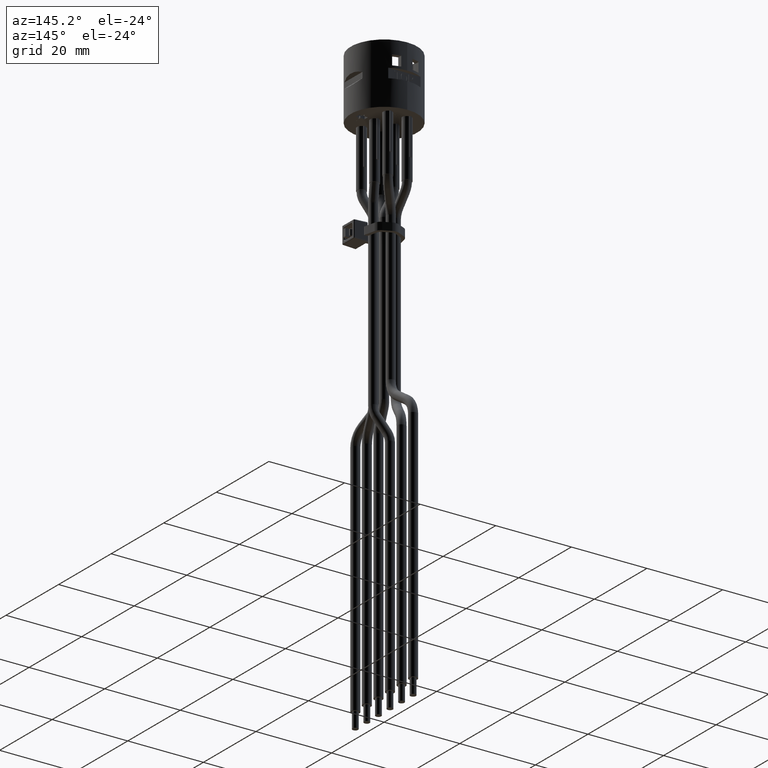
[diagram: clean part render]
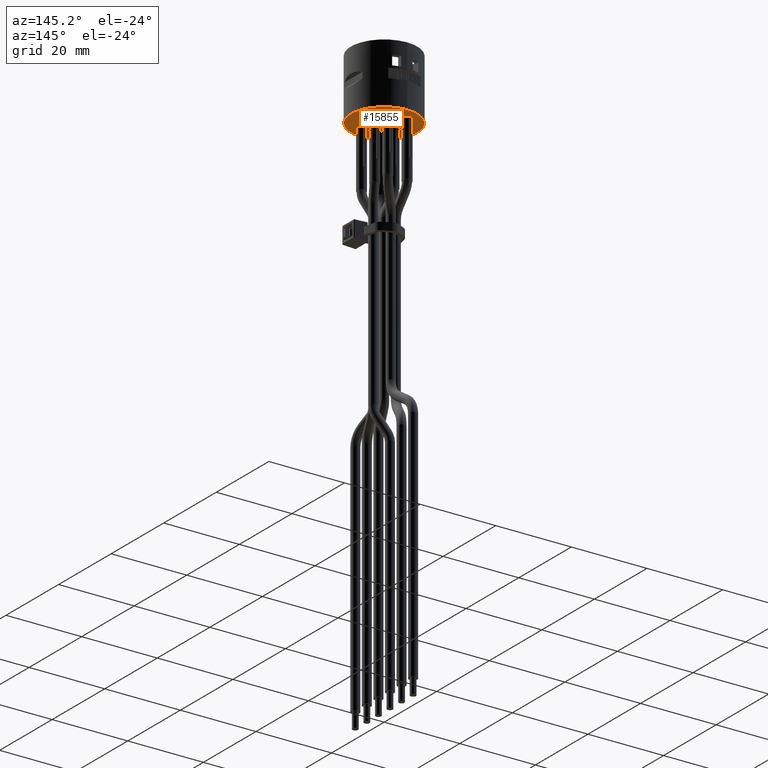
[diagram: same view with one face highlighted and labeled with its STEP entity id]
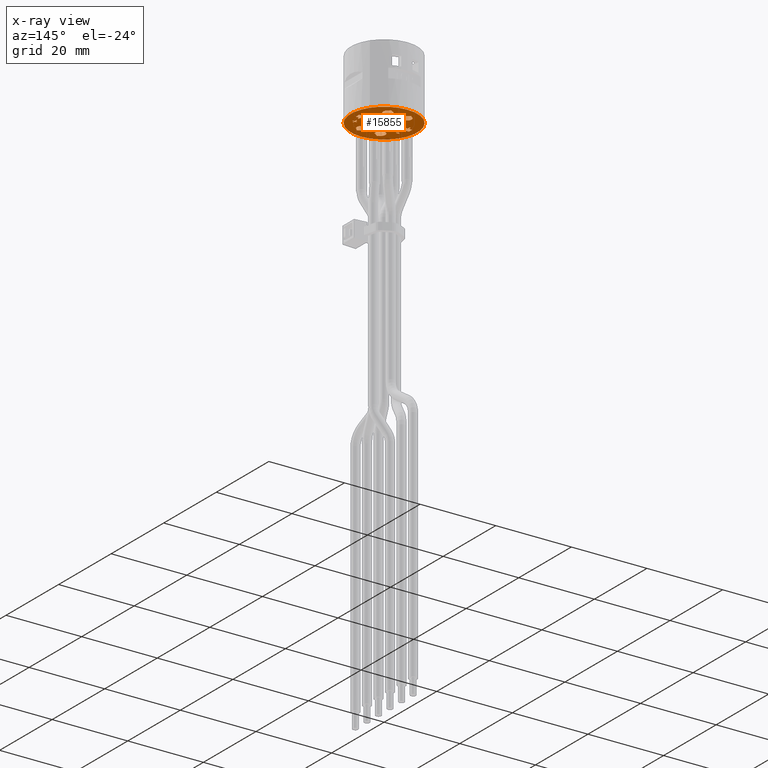
[diagram: x-ray of the same camera — body ghosted, the highlighted face saturated]
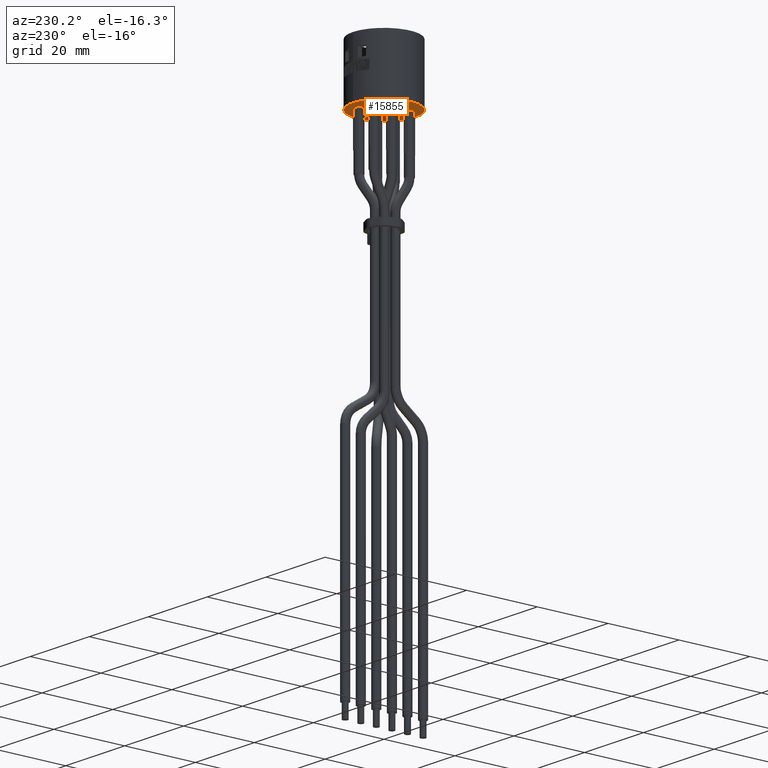
[diagram: same view with one face highlighted and labeled with its STEP entity id]
A machine part, auxiliary view. The second image highlights one B-rep face of the part: STEP entity #15855.
The next image is the same camera in x-ray: the body ghosted, the highlighted face saturated — about 1% of this face is hidden behind the body in this view.
A second angle (auxiliary view) of the same face is appended — the face is thin or edge-on in the first view.
In plain terms, the highlighted planar face has unit normal (-0, -0, 1).
Its self-contained STEP definition (entity closure, byte-faithful):
#160=B_SPLINE_CURVE_WITH_KNOTS('',2,(#23994,#23995,#23996,#23997),
 .UNSPECIFIED.,.F.,.F.,(3,1,3),(0.,1.,2.),.UNSPECIFIED.);
#161=B_SPLINE_CURVE_WITH_KNOTS('',2,(#23999,#24000,#24001,#24002,#24003),
 .UNSPECIFIED.,.F.,.F.,(3,1,1,3),(0.,1.,2.,3.),.UNSPECIFIED.);
#162=B_SPLINE_CURVE_WITH_KNOTS('',2,(#24005,#24006,#24007,#24008,#24009),
 .UNSPECIFIED.,.F.,.F.,(3,1,1,3),(0.,1.,2.,3.),.UNSPECIFIED.);
#163=B_SPLINE_CURVE_WITH_KNOTS('',2,(#24011,#24012,#24013,#24014),
 .UNSPECIFIED.,.F.,.F.,(3,1,3),(0.,1.,2.),.UNSPECIFIED.);
#164=B_SPLINE_CURVE_WITH_KNOTS('',2,(#24018,#24019,#24020,#24021),
 .UNSPECIFIED.,.F.,.F.,(3,1,3),(0.,1.,2.),.UNSPECIFIED.);
#165=B_SPLINE_CURVE_WITH_KNOTS('',2,(#24023,#24024,#24025,#24026,#24027),
 .UNSPECIFIED.,.F.,.F.,(3,1,1,3),(0.,1.,2.,3.),.UNSPECIFIED.);
#166=B_SPLINE_CURVE_WITH_KNOTS('',2,(#24029,#24030,#24031,#24032,#24033),
 .UNSPECIFIED.,.F.,.F.,(3,1,1,3),(0.,1.,2.,3.),.UNSPECIFIED.);
#167=B_SPLINE_CURVE_WITH_KNOTS('',2,(#24035,#24036,#24037,#24038),
 .UNSPECIFIED.,.F.,.F.,(3,1,3),(0.,1.,2.),.UNSPECIFIED.);
#168=B_SPLINE_CURVE_WITH_KNOTS('',2,(#24044,#24045,#24046,#24047),
 .UNSPECIFIED.,.F.,.F.,(3,1,3),(0.,1.,2.),.UNSPECIFIED.);
#169=B_SPLINE_CURVE_WITH_KNOTS('',2,(#24049,#24050,#24051,#24052,#24053),
 .UNSPECIFIED.,.F.,.F.,(3,1,1,3),(0.,1.,2.,3.),.UNSPECIFIED.);
#170=B_SPLINE_CURVE_WITH_KNOTS('',2,(#24055,#24056,#24057,#24058,#24059),
 .UNSPECIFIED.,.F.,.F.,(3,1,1,3),(0.,1.,2.,3.),.UNSPECIFIED.);
#171=B_SPLINE_CURVE_WITH_KNOTS('',2,(#24061,#24062,#24063,#24064),
 .UNSPECIFIED.,.F.,.F.,(3,1,3),(0.,1.,2.),.UNSPECIFIED.);
#172=B_SPLINE_CURVE_WITH_KNOTS('',2,(#24068,#24069,#24070),
 .UNSPECIFIED.,.F.,.F.,(3,3),(0.,1.),.UNSPECIFIED.);
#173=B_SPLINE_CURVE_WITH_KNOTS('',2,(#24072,#24073,#24074,#24075,#24076),
 .UNSPECIFIED.,.F.,.F.,(3,1,1,3),(0.,1.,2.,3.),.UNSPECIFIED.);
#174=B_SPLINE_CURVE_WITH_KNOTS('',2,(#24078,#24079,#24080,#24081),
 .UNSPECIFIED.,.F.,.F.,(3,1,3),(0.,1.,2.),.UNSPECIFIED.);
#175=B_SPLINE_CURVE_WITH_KNOTS('',2,(#24082,#24083,#24084,#24085),
 .UNSPECIFIED.,.F.,.F.,(3,1,3),(0.,1.,2.),.UNSPECIFIED.);
#176=B_SPLINE_CURVE_WITH_KNOTS('',2,(#24140,#24141,#24142),
 .UNSPECIFIED.,.F.,.F.,(3,3),(0.,1.),.UNSPECIFIED.);
#177=B_SPLINE_CURVE_WITH_KNOTS('',2,(#24144,#24145,#24146,#24147),
 .UNSPECIFIED.,.F.,.F.,(3,1,3),(0.,1.,2.),.UNSPECIFIED.);
#178=B_SPLINE_CURVE_WITH_KNOTS('',2,(#24149,#24150,#24151,#24152,#24153),
 .UNSPECIFIED.,.F.,.F.,(3,1,1,3),(0.,1.,2.,3.),.UNSPECIFIED.);
#179=B_SPLINE_CURVE_WITH_KNOTS('',2,(#24155,#24156,#24157),
 .UNSPECIFIED.,.F.,.F.,(3,3),(0.,1.),.UNSPECIFIED.);
#180=B_SPLINE_CURVE_WITH_KNOTS('',2,(#24159,#24160,#24161),
 .UNSPECIFIED.,.F.,.F.,(3,3),(0.,1.),.UNSPECIFIED.);
#181=B_SPLINE_CURVE_WITH_KNOTS('',2,(#24162,#24163,#24164),
 .UNSPECIFIED.,.F.,.F.,(3,3),(0.,1.),.UNSPECIFIED.);
#291=FACE_BOUND('',#2049,.T.);
#292=FACE_BOUND('',#2050,.T.);
#293=FACE_BOUND('',#2051,.T.);
#294=FACE_BOUND('',#2052,.T.);
#295=FACE_BOUND('',#2053,.T.);
#296=FACE_BOUND('',#2054,.T.);
#297=FACE_BOUND('',#2055,.T.);
#298=FACE_BOUND('',#2056,.T.);
#299=FACE_BOUND('',#2057,.T.);
#300=FACE_BOUND('',#2058,.T.);
#301=FACE_BOUND('',#2059,.T.);
#302=FACE_BOUND('',#2060,.T.);
#303=FACE_BOUND('',#2061,.T.);
#304=FACE_BOUND('',#2062,.T.);
#305=FACE_BOUND('',#2063,.T.);
#580=PLANE('',#16733);
#1213=FACE_OUTER_BOUND('',#2048,.T.);
#2048=EDGE_LOOP('',(#12201));
#2049=EDGE_LOOP('',(#12202,#12203,#12204,#12205,#12206,#12207,#12208,#12209,
#12210,#12211,#12212,#12213));
#2050=EDGE_LOOP('',(#12214,#12215,#12216,#12217,#12218,#12219,#12220,#12221,
#12222,#12223,#12224,#12225,#12226,#12227,#12228,#12229,#12230,#12231,#12232));
#2051=EDGE_LOOP('',(#12233,#12234,#12235,#12236,#12237,#12238,#12239,#12240,
#12241,#12242,#12243,#12244));
#2052=EDGE_LOOP('',(#12245,#12246,#12247,#12248,#12249,#12250,#12251,#12252,
#12253,#12254,#12255,#12256,#12257,#12258,#12259,#12260,#12261,#12262,#12263));
#2053=EDGE_LOOP('',(#12264,#12265,#12266,#12267,#12268,#12269,#12270,#12271,
#12272,#12273,#12274,#12275));
#2054=EDGE_LOOP('',(#12276,#12277,#12278,#12279,#12280,#12281,#12282,#12283,
#12284,#12285,#12286,#12287,#12288,#12289,#12290,#12291,#12292,#12293,#12294));
#2055=EDGE_LOOP('',(#12295,#12296,#12297,#12298,#12299,#12300,#12301,#12302,
#12303,#12304,#12305,#12306));
#2056=EDGE_LOOP('',(#12307,#12308,#12309,#12310,#12311,#12312,#12313,#12314,
#12315,#12316,#12317,#12318));
#2057=EDGE_LOOP('',(#12319,#12320,#12321,#12322,#12323,#12324,#12325,#12326,
#12327,#12328));
#2058=EDGE_LOOP('',(#12329,#12330,#12331,#12332,#12333,#12334,#12335,#12336,
#12337,#12338));
#2059=EDGE_LOOP('',(#12339,#12340,#12341,#12342,#12343,#12344,#12345,#12346,
#12347,#12348));
#2060=EDGE_LOOP('',(#12349,#12350,#12351,#12352));
#2061=EDGE_LOOP('',(#12353,#12354,#12355,#12356,#12357,#12358,#12359,#12360,
#12361,#12362,#12363,#12364));
#2062=EDGE_LOOP('',(#12365,#12366,#12367,#12368,#12369,#12370,#12371,#12372,
#12373,#12374));
#2063=EDGE_LOOP('',(#12375,#12376,#12377,#12378,#12379,#12380));
#2708=CIRCLE('',#16734,8.8);
#2709=CIRCLE('',#16735,1.2);
#2710=CIRCLE('',#16736,1.2);
#2711=CIRCLE('',#16737,1.2);
#2712=CIRCLE('',#16738,1.2);
#2713=CIRCLE('',#16739,1.2);
#2714=CIRCLE('',#16740,1.2);
#2715=CIRCLE('',#16741,1.2);
#2716=CIRCLE('',#16742,1.2);
#2717=CIRCLE('',#16743,1.2);
#2718=CIRCLE('',#16744,1.2);
#2719=CIRCLE('',#16745,1.2);
#2720=CIRCLE('',#16746,1.2);
#2721=CIRCLE('',#16747,1.2);
#2722=CIRCLE('',#16748,1.2);
#2723=CIRCLE('',#16749,1.2);
#2724=CIRCLE('',#16750,1.2);
#2725=CIRCLE('',#16751,1.2);
#2726=CIRCLE('',#16752,1.2);
#2727=CIRCLE('',#16753,1.2);
#2728=CIRCLE('',#16754,1.2);
#2729=CIRCLE('',#16755,1.2);
#2730=CIRCLE('',#16756,1.2);
#2731=CIRCLE('',#16757,1.2);
#2732=CIRCLE('',#16758,1.2);
#3586=LINE('',#22979,#5416);
#3713=LINE('',#23240,#5543);
#3840=LINE('',#23501,#5670);
#3849=LINE('',#23518,#5679);
#3866=LINE('',#23555,#5696);
#3869=LINE('',#23559,#5699);
#3871=LINE('',#23564,#5701);
#3883=LINE('',#23589,#5713);
#3890=LINE('',#23602,#5720);
#3908=LINE('',#23641,#5738);
#3911=LINE('',#23645,#5741);
#3913=LINE('',#23650,#5743);
#3924=LINE('',#23673,#5754);
#3931=LINE('',#23687,#5761);
#3938=LINE('',#23700,#5768);
#3957=LINE('',#23739,#5787);
#3968=LINE('',#23784,#5798);
#3969=LINE('',#23788,#5799);
#3970=LINE('',#23790,#5800);
#3971=LINE('',#23792,#5801);
#3972=LINE('',#23796,#5802);
#3973=LINE('',#23798,#5803);
#3974=LINE('',#23799,#5804);
#3975=LINE('',#23804,#5805);
#3976=LINE('',#23806,#5806);
#3977=LINE('',#23808,#5807);
#3978=LINE('',#23812,#5808);
#3979=LINE('',#23814,#5809);
#3980=LINE('',#23815,#5810);
#3981=LINE('',#23819,#5811);
#3982=LINE('',#23821,#5812);
#3983=LINE('',#23823,#5813);
#3984=LINE('',#23826,#5814);
#3985=LINE('',#23830,#5815);
#3986=LINE('',#23834,#5816);
#3987=LINE('',#23836,#5817);
#3988=LINE('',#23838,#5818);
#3989=LINE('',#23842,#5819);
#3990=LINE('',#23844,#5820);
#3991=LINE('',#23845,#5821);
#3992=LINE('',#23848,#5822);
#3993=LINE('',#23852,#5823);
#3994=LINE('',#23854,#5824);
#3995=LINE('',#23856,#5825);
#3996=LINE('',#23860,#5826);
#3997=LINE('',#23862,#5827);
#3998=LINE('',#23863,#5828);
#3999=LINE('',#23867,#5829);
#4000=LINE('',#23869,#5830);
#4001=LINE('',#23871,#5831);
#4002=LINE('',#23876,#5832);
#4003=LINE('',#23880,#5833);
#4004=LINE('',#23882,#5834);
#4005=LINE('',#23884,#5835);
#4006=LINE('',#23888,#5836);
#4007=LINE('',#23890,#5837);
#4008=LINE('',#23891,#5838);
#4009=LINE('',#23895,#5839);
#4010=LINE('',#23897,#5840);
#4011=LINE('',#23899,#5841);
#4012=LINE('',#23903,#5842);
#4013=LINE('',#23905,#5843);
#4014=LINE('',#23907,#5844);
#4015=LINE('',#23909,#5845);
#4016=LINE('',#23913,#5846);
#4017=LINE('',#23915,#5847);
#4018=LINE('',#23917,#5848);
#4019=LINE('',#23920,#5849);
#4020=LINE('',#23923,#5850);
#4021=LINE('',#23926,#5851);
#4022=LINE('',#23928,#5852);
#4023=LINE('',#23930,#5853);
#4024=LINE('',#23932,#5854);
#4025=LINE('',#23934,#5855);
#4026=LINE('',#23936,#5856);
#4027=LINE('',#23938,#5857);
#4028=LINE('',#23940,#5858);
#4029=LINE('',#23942,#5859);
#4030=LINE('',#23944,#5860);
#4031=LINE('',#23946,#5861);
#4032=LINE('',#23947,#5862);
#4033=LINE('',#23950,#5863);
#4034=LINE('',#23952,#5864);
#4035=LINE('',#23954,#5865);
#4036=LINE('',#23956,#5866);
#4037=LINE('',#23958,#5867);
#4038=LINE('',#23960,#5868);
#4039=LINE('',#23962,#5869);
#4040=LINE('',#23964,#5870);
#4041=LINE('',#23966,#5871);
#4042=LINE('',#23968,#5872);
#4043=LINE('',#23970,#5873);
#4044=LINE('',#23971,#5874);
#4045=LINE('',#23974,#5875);
#4046=LINE('',#23976,#5876);
#4047=LINE('',#23978,#5877);
#4048=LINE('',#23980,#5878);
#4049=LINE('',#23982,#5879);
#4050=LINE('',#23984,#5880);
#4051=LINE('',#23986,#5881);
#4052=LINE('',#23988,#5882);
#4053=LINE('',#23990,#5883);
#4054=LINE('',#23991,#5884);
#4055=LINE('',#24016,#5885);
#4056=LINE('',#24039,#5886);
#4057=LINE('',#24042,#5887);
#4058=LINE('',#24066,#5888);
#4059=LINE('',#24088,#5889);
#4060=LINE('',#24090,#5890);
#4061=LINE('',#24092,#5891);
#4062=LINE('',#24093,#5892);
#4063=LINE('',#24096,#5893);
#4064=LINE('',#24098,#5894);
#4065=LINE('',#24100,#5895);
#4066=LINE('',#24102,#5896);
#4067=LINE('',#24104,#5897);
#4068=LINE('',#24106,#5898);
#4069=LINE('',#24108,#5899);
#4070=LINE('',#24110,#5900);
#4071=LINE('',#24112,#5901);
#4072=LINE('',#24114,#5902);
#4073=LINE('',#24116,#5903);
#4074=LINE('',#24117,#5904);
#4075=LINE('',#24120,#5905);
#4076=LINE('',#24122,#5906);
#4077=LINE('',#24124,#5907);
#4078=LINE('',#24126,#5908);
#4079=LINE('',#24128,#5909);
#4080=LINE('',#24130,#5910);
#4081=LINE('',#24132,#5911);
#4082=LINE('',#24134,#5912);
#4083=LINE('',#24136,#5913);
#4084=LINE('',#24137,#5914);
#5416=VECTOR('',#18488,10.);
#5543=VECTOR('',#18695,10.);
#5670=VECTOR('',#18902,10.);
#5679=VECTOR('',#18917,10.);
#5696=VECTOR('',#18944,10.);
#5699=VECTOR('',#18947,10.);
#5701=VECTOR('',#18951,10.);
#5713=VECTOR('',#18969,10.);
#5720=VECTOR('',#18978,10.);
#5738=VECTOR('',#19006,10.);
#5741=VECTOR('',#19009,10.);
#5743=VECTOR('',#19013,10.);
#5754=VECTOR('',#19030,10.);
#5761=VECTOR('',#19039,10.);
#5768=VECTOR('',#19048,10.);
#5787=VECTOR('',#19077,10.);
#5798=VECTOR('',#19126,10.);
#5799=VECTOR('',#19129,10.);
#5800=VECTOR('',#19130,10.);
#5801=VECTOR('',#19131,10.);
#5802=VECTOR('',#19134,10.);
#5803=VECTOR('',#19135,10.);
#5804=VECTOR('',#19136,10.);
#5805=VECTOR('',#19139,10.);
#5806=VECTOR('',#19140,10.);
#5807=VECTOR('',#19141,10.);
#5808=VECTOR('',#19144,10.);
#5809=VECTOR('',#19145,10.);
#5810=VECTOR('',#19146,10.);
#5811=VECTOR('',#19149,10.);
#5812=VECTOR('',#19150,10.);
#5813=VECTOR('',#19151,10.);
#5814=VECTOR('',#19156,10.);
#5815=VECTOR('',#19159,10.);
#5816=VECTOR('',#19162,10.);
#5817=VECTOR('',#19163,10.);
#5818=VECTOR('',#19164,10.);
#5819=VECTOR('',#19167,10.);
#5820=VECTOR('',#19168,10.);
#5821=VECTOR('',#19169,10.);
#5822=VECTOR('',#19172,10.);
#5823=VECTOR('',#19175,10.);
#5824=VECTOR('',#19176,10.);
#5825=VECTOR('',#19177,10.);
#5826=VECTOR('',#19180,10.);
#5827=VECTOR('',#19181,10.);
#5828=VECTOR('',#19182,10.);
#5829=VECTOR('',#19185,10.);
#5830=VECTOR('',#19186,10.);
#5831=VECTOR('',#19187,10.);
#5832=VECTOR('',#19192,10.);
#5833=VECTOR('',#19195,10.);
#5834=VECTOR('',#19196,10.);
#5835=VECTOR('',#19197,10.);
#5836=VECTOR('',#19200,10.);
#5837=VECTOR('',#19201,10.);
#5838=VECTOR('',#19202,10.);
#5839=VECTOR('',#19205,10.);
#5840=VECTOR('',#19206,10.);
#5841=VECTOR('',#19207,10.);
#5842=VECTOR('',#19210,10.);
#5843=VECTOR('',#19211,10.);
#5844=VECTOR('',#19212,10.);
#5845=VECTOR('',#19213,10.);
#5846=VECTOR('',#19216,10.);
#5847=VECTOR('',#19217,10.);
#5848=VECTOR('',#19218,10.);
#5849=VECTOR('',#19221,10.);
#5850=VECTOR('',#19224,10.);
#5851=VECTOR('',#19225,10.);
#5852=VECTOR('',#19226,10.);
#5853=VECTOR('',#19227,10.);
#5854=VECTOR('',#19228,10.);
#5855=VECTOR('',#19229,10.);
#5856=VECTOR('',#19230,10.);
#5857=VECTOR('',#19231,10.);
#5858=VECTOR('',#19232,10.);
#5859=VECTOR('',#19233,10.);
#5860=VECTOR('',#19234,10.);
#5861=VECTOR('',#19235,10.);
#5862=VECTOR('',#19236,10.);
#5863=VECTOR('',#19237,10.);
#5864=VECTOR('',#19238,10.);
#5865=VECTOR('',#19239,10.);
#5866=VECTOR('',#19240,10.);
#5867=VECTOR('',#19241,10.);
#5868=VECTOR('',#19242,10.);
#5869=VECTOR('',#19243,10.);
#5870=VECTOR('',#19244,10.);
#5871=VECTOR('',#19245,10.);
#5872=VECTOR('',#19246,10.);
#5873=VECTOR('',#19247,10.);
#5874=VECTOR('',#19248,10.);
#5875=VECTOR('',#19249,10.);
#5876=VECTOR('',#19250,10.);
#5877=VECTOR('',#19251,10.);
#5878=VECTOR('',#19252,10.);
#5879=VECTOR('',#19253,10.);
#5880=VECTOR('',#19254,10.);
#5881=VECTOR('',#19255,10.);
#5882=VECTOR('',#19256,10.);
#5883=VECTOR('',#19257,10.);
#5884=VECTOR('',#19258,10.);
#5885=VECTOR('',#19259,10.);
#5886=VECTOR('',#19260,10.);
#5887=VECTOR('',#19261,10.);
#5888=VECTOR('',#19262,10.);
#5889=VECTOR('',#19263,10.);
#5890=VECTOR('',#19264,10.);
#5891=VECTOR('',#19265,10.);
#5892=VECTOR('',#19266,10.);
#5893=VECTOR('',#19267,10.);
#5894=VECTOR('',#19268,10.);
#5895=VECTOR('',#19269,10.);
#5896=VECTOR('',#19270,10.);
#5897=VECTOR('',#19271,10.);
#5898=VECTOR('',#19272,10.);
#5899=VECTOR('',#19273,10.);
#5900=VECTOR('',#19274,10.);
#5901=VECTOR('',#19275,10.);
#5902=VECTOR('',#19276,10.);
#5903=VECTOR('',#19277,10.);
#5904=VECTOR('',#19278,10.);
#5905=VECTOR('',#19279,10.);
#5906=VECTOR('',#19280,10.);
#5907=VECTOR('',#19281,10.);
#5908=VECTOR('',#19282,10.);
#5909=VECTOR('',#19283,10.);
#5910=VECTOR('',#19284,10.);
#5911=VECTOR('',#19285,10.);
#5912=VECTOR('',#19286,10.);
#5913=VECTOR('',#19287,10.);
#5914=VECTOR('',#19288,10.);
#7126=VERTEX_POINT('',#22976);
#7127=VERTEX_POINT('',#22978);
#7220=VERTEX_POINT('',#23237);
#7221=VERTEX_POINT('',#23239);
#7314=VERTEX_POINT('',#23498);
#7315=VERTEX_POINT('',#23500);
#7317=VERTEX_POINT('',#23509);
#7331=VERTEX_POINT('',#23546);
#7334=VERTEX_POINT('',#23552);
#7335=VERTEX_POINT('',#23554);
#7336=VERTEX_POINT('',#23557);
#7338=VERTEX_POINT('',#23563);
#7347=VERTEX_POINT('',#23586);
#7348=VERTEX_POINT('',#23588);
#7350=VERTEX_POINT('',#23593);
#7365=VERTEX_POINT('',#23632);
#7368=VERTEX_POINT('',#23638);
#7369=VERTEX_POINT('',#23640);
#7370=VERTEX_POINT('',#23643);
#7372=VERTEX_POINT('',#23649);
#7380=VERTEX_POINT('',#23670);
#7381=VERTEX_POINT('',#23672);
#7386=VERTEX_POINT('',#23684);
#7387=VERTEX_POINT('',#23686);
#7389=VERTEX_POINT('',#23691);
#7403=VERTEX_POINT('',#23728);
#7407=VERTEX_POINT('',#23737);
#7420=VERTEX_POINT('',#23779);
#7421=VERTEX_POINT('',#23781);
#7422=VERTEX_POINT('',#23783);
#7423=VERTEX_POINT('',#23785);
#7424=VERTEX_POINT('',#23787);
#7425=VERTEX_POINT('',#23789);
#7426=VERTEX_POINT('',#23791);
#7427=VERTEX_POINT('',#23793);
#7428=VERTEX_POINT('',#23795);
#7429=VERTEX_POINT('',#23797);
#7430=VERTEX_POINT('',#23800);
#7431=VERTEX_POINT('',#23801);
#7432=VERTEX_POINT('',#23803);
#7433=VERTEX_POINT('',#23805);
#7434=VERTEX_POINT('',#23807);
#7435=VERTEX_POINT('',#23809);
#7436=VERTEX_POINT('',#23811);
#7437=VERTEX_POINT('',#23813);
#7438=VERTEX_POINT('',#23816);
#7439=VERTEX_POINT('',#23818);
#7440=VERTEX_POINT('',#23820);
#7441=VERTEX_POINT('',#23822);
#7442=VERTEX_POINT('',#23827);
#7443=VERTEX_POINT('',#23829);
#7444=VERTEX_POINT('',#23831);
#7445=VERTEX_POINT('',#23833);
#7446=VERTEX_POINT('',#23835);
#7447=VERTEX_POINT('',#23837);
#7448=VERTEX_POINT('',#23839);
#7449=VERTEX_POINT('',#23841);
#7450=VERTEX_POINT('',#23843);
#7451=VERTEX_POINT('',#23847);
#7452=VERTEX_POINT('',#23849);
#7453=VERTEX_POINT('',#23851);
#7454=VERTEX_POINT('',#23853);
#7455=VERTEX_POINT('',#23855);
#7456=VERTEX_POINT('',#23857);
#7457=VERTEX_POINT('',#23859);
#7458=VERTEX_POINT('',#23861);
#7459=VERTEX_POINT('',#23864);
#7460=VERTEX_POINT('',#23866);
#7461=VERTEX_POINT('',#23868);
#7462=VERTEX_POINT('',#23870);
#7463=VERTEX_POINT('',#23873);
#7464=VERTEX_POINT('',#23875);
#7465=VERTEX_POINT('',#23877);
#7466=VERTEX_POINT('',#23879);
#7467=VERTEX_POINT('',#23881);
#7468=VERTEX_POINT('',#23883);
#7469=VERTEX_POINT('',#23885);
#7470=VERTEX_POINT('',#23887);
#7471=VERTEX_POINT('',#23889);
#7472=VERTEX_POINT('',#23892);
#7473=VERTEX_POINT('',#23894);
#7474=VERTEX_POINT('',#23896);
#7475=VERTEX_POINT('',#23898);
#7476=VERTEX_POINT('',#23900);
#7477=VERTEX_POINT('',#23902);
#7478=VERTEX_POINT('',#23904);
#7479=VERTEX_POINT('',#23906);
#7480=VERTEX_POINT('',#23908);
#7481=VERTEX_POINT('',#23910);
#7482=VERTEX_POINT('',#23912);
#7483=VERTEX_POINT('',#23914);
#7484=VERTEX_POINT('',#23916);
#7485=VERTEX_POINT('',#23919);
#7486=VERTEX_POINT('',#23921);
#7487=VERTEX_POINT('',#23924);
#7488=VERTEX_POINT('',#23925);
#7489=VERTEX_POINT('',#23927);
#7490=VERTEX_POINT('',#23929);
#7491=VERTEX_POINT('',#23931);
#7492=VERTEX_POINT('',#23933);
#7493=VERTEX_POINT('',#23935);
#7494=VERTEX_POINT('',#23937);
#7495=VERTEX_POINT('',#23939);
#7496=VERTEX_POINT('',#23941);
#7497=VERTEX_POINT('',#23943);
#7498=VERTEX_POINT('',#23945);
#7499=VERTEX_POINT('',#23948);
#7500=VERTEX_POINT('',#23949);
#7501=VERTEX_POINT('',#23951);
#7502=VERTEX_POINT('',#23953);
#7503=VERTEX_POINT('',#23955);
#7504=VERTEX_POINT('',#23957);
#7505=VERTEX_POINT('',#23959);
#7506=VERTEX_POINT('',#23961);
#7507=VERTEX_POINT('',#23963);
#7508=VERTEX_POINT('',#23965);
#7509=VERTEX_POINT('',#23967);
#7510=VERTEX_POINT('',#23969);
#7511=VERTEX_POINT('',#23972);
#7512=VERTEX_POINT('',#23973);
#7513=VERTEX_POINT('',#23975);
#7514=VERTEX_POINT('',#23977);
#7515=VERTEX_POINT('',#23979);
#7516=VERTEX_POINT('',#23981);
#7517=VERTEX_POINT('',#23983);
#7518=VERTEX_POINT('',#23985);
#7519=VERTEX_POINT('',#23987);
#7520=VERTEX_POINT('',#23989);
#7521=VERTEX_POINT('',#23992);
#7522=VERTEX_POINT('',#23993);
#7523=VERTEX_POINT('',#23998);
#7524=VERTEX_POINT('',#24004);
#7525=VERTEX_POINT('',#24010);
#7526=VERTEX_POINT('',#24015);
#7527=VERTEX_POINT('',#24017);
#7528=VERTEX_POINT('',#24022);
#7529=VERTEX_POINT('',#24028);
#7530=VERTEX_POINT('',#24034);
#7531=VERTEX_POINT('',#24040);
#7532=VERTEX_POINT('',#24041);
#7533=VERTEX_POINT('',#24043);
#7534=VERTEX_POINT('',#24048);
#7535=VERTEX_POINT('',#24054);
#7536=VERTEX_POINT('',#24060);
#7537=VERTEX_POINT('',#24065);
#7538=VERTEX_POINT('',#24067);
#7539=VERTEX_POINT('',#24071);
#7540=VERTEX_POINT('',#24077);
#7541=VERTEX_POINT('',#24086);
#7542=VERTEX_POINT('',#24087);
#7543=VERTEX_POINT('',#24089);
#7544=VERTEX_POINT('',#24091);
#7545=VERTEX_POINT('',#24094);
#7546=VERTEX_POINT('',#24095);
#7547=VERTEX_POINT('',#24097);
#7548=VERTEX_POINT('',#24099);
#7549=VERTEX_POINT('',#24101);
#7550=VERTEX_POINT('',#24103);
#7551=VERTEX_POINT('',#24105);
#7552=VERTEX_POINT('',#24107);
#7553=VERTEX_POINT('',#24109);
#7554=VERTEX_POINT('',#24111);
#7555=VERTEX_POINT('',#24113);
#7556=VERTEX_POINT('',#24115);
#7557=VERTEX_POINT('',#24118);
#7558=VERTEX_POINT('',#24119);
#7559=VERTEX_POINT('',#24121);
#7560=VERTEX_POINT('',#24123);
#7561=VERTEX_POINT('',#24125);
#7562=VERTEX_POINT('',#24127);
#7563=VERTEX_POINT('',#24129);
#7564=VERTEX_POINT('',#24131);
#7565=VERTEX_POINT('',#24133);
#7566=VERTEX_POINT('',#24135);
#7567=VERTEX_POINT('',#24138);
#7568=VERTEX_POINT('',#24139);
#7569=VERTEX_POINT('',#24143);
#7570=VERTEX_POINT('',#24148);
#7571=VERTEX_POINT('',#24154);
#7572=VERTEX_POINT('',#24158);
#8845=EDGE_CURVE('',#7127,#7126,#3586,.T.);
#8976=EDGE_CURVE('',#7221,#7220,#3713,.T.);
#9107=EDGE_CURVE('',#7315,#7314,#3840,.T.);
#9116=EDGE_CURVE('',#7317,#7221,#3849,.T.);
#9133=EDGE_CURVE('',#7335,#7334,#3866,.T.);
#9136=EDGE_CURVE('',#7331,#7336,#3869,.T.);
#9138=EDGE_CURVE('',#7338,#7335,#3871,.T.);
#9150=EDGE_CURVE('',#7348,#7347,#3883,.T.);
#9157=EDGE_CURVE('',#7350,#7127,#3890,.T.);
#9175=EDGE_CURVE('',#7369,#7368,#3908,.T.);
#9178=EDGE_CURVE('',#7365,#7370,#3911,.T.);
#9180=EDGE_CURVE('',#7372,#7369,#3913,.T.);
#9191=EDGE_CURVE('',#7381,#7380,#3924,.T.);
#9198=EDGE_CURVE('',#7387,#7386,#3931,.T.);
#9205=EDGE_CURVE('',#7389,#7315,#3938,.T.);
#9224=EDGE_CURVE('',#7403,#7407,#3957,.T.);
#9242=EDGE_CURVE('',#7420,#7420,#2708,.T.);
#9243=EDGE_CURVE('',#7317,#7421,#2709,.T.);
#9244=EDGE_CURVE('',#7220,#7422,#3968,.T.);
#9245=EDGE_CURVE('',#7423,#7422,#2710,.T.);
#9246=EDGE_CURVE('',#7424,#7423,#3969,.T.);
#9247=EDGE_CURVE('',#7425,#7424,#3970,.T.);
#9248=EDGE_CURVE('',#7426,#7425,#3971,.T.);
#9249=EDGE_CURVE('',#7427,#7426,#2711,.T.);
#9250=EDGE_CURVE('',#7428,#7427,#3972,.T.);
#9251=EDGE_CURVE('',#7429,#7428,#3973,.T.);
#9252=EDGE_CURVE('',#7421,#7429,#3974,.T.);
#9253=EDGE_CURVE('',#7430,#7431,#2712,.T.);
#9254=EDGE_CURVE('',#7432,#7430,#3975,.T.);
#9255=EDGE_CURVE('',#7433,#7432,#3976,.T.);
#9256=EDGE_CURVE('',#7434,#7433,#3977,.T.);
#9257=EDGE_CURVE('',#7435,#7434,#2713,.T.);
#9258=EDGE_CURVE('',#7435,#7436,#3978,.T.);
#9259=EDGE_CURVE('',#7436,#7437,#3979,.T.);
#9260=EDGE_CURVE('',#7437,#7348,#3980,.T.);
#9261=EDGE_CURVE('',#7438,#7347,#2714,.T.);
#9262=EDGE_CURVE('',#7439,#7438,#3981,.T.);
#9263=EDGE_CURVE('',#7440,#7439,#3982,.T.);
#9264=EDGE_CURVE('',#7441,#7440,#3983,.T.);
#9265=EDGE_CURVE('',#7338,#7441,#2715,.T.);
#9266=EDGE_CURVE('',#7331,#7334,#2716,.T.);
#9267=EDGE_CURVE('',#7336,#7431,#3984,.T.);
#9268=EDGE_CURVE('',#7350,#7442,#2717,.T.);
#9269=EDGE_CURVE('',#7126,#7443,#3985,.T.);
#9270=EDGE_CURVE('',#7444,#7443,#2718,.T.);
#9271=EDGE_CURVE('',#7445,#7444,#3986,.T.);
#9272=EDGE_CURVE('',#7446,#7445,#3987,.T.);
#9273=EDGE_CURVE('',#7447,#7446,#3988,.T.);
#9274=EDGE_CURVE('',#7448,#7447,#2719,.T.);
#9275=EDGE_CURVE('',#7449,#7448,#3989,.T.);
#9276=EDGE_CURVE('',#7450,#7449,#3990,.T.);
#9277=EDGE_CURVE('',#7442,#7450,#3991,.T.);
#9278=EDGE_CURVE('',#7365,#7368,#2720,.T.);
#9279=EDGE_CURVE('',#7370,#7451,#3992,.T.);
#9280=EDGE_CURVE('',#7452,#7451,#2721,.T.);
#9281=EDGE_CURVE('',#7453,#7452,#3993,.T.);
#9282=EDGE_CURVE('',#7454,#7453,#3994,.T.);
#9283=EDGE_CURVE('',#7455,#7454,#3995,.T.);
#9284=EDGE_CURVE('',#7456,#7455,#2722,.T.);
#9285=EDGE_CURVE('',#7456,#7457,#3996,.T.);
#9286=EDGE_CURVE('',#7457,#7458,#3997,.T.);
#9287=EDGE_CURVE('',#7458,#7381,#3998,.T.);
#9288=EDGE_CURVE('',#7459,#7380,#2723,.T.);
#9289=EDGE_CURVE('',#7460,#7459,#3999,.T.);
#9290=EDGE_CURVE('',#7461,#7460,#4000,.T.);
#9291=EDGE_CURVE('',#7462,#7461,#4001,.T.);
#9292=EDGE_CURVE('',#7372,#7462,#2724,.T.);
#9293=EDGE_CURVE('',#7389,#7463,#2725,.T.);
#9294=EDGE_CURVE('',#7314,#7464,#4002,.T.);
#9295=EDGE_CURVE('',#7465,#7464,#2726,.T.);
#9296=EDGE_CURVE('',#7466,#7465,#4003,.T.);
#9297=EDGE_CURVE('',#7467,#7466,#4004,.T.);
#9298=EDGE_CURVE('',#7468,#7467,#4005,.T.);
#9299=EDGE_CURVE('',#7469,#7468,#2727,.T.);
#9300=EDGE_CURVE('',#7470,#7469,#4006,.T.);
#9301=EDGE_CURVE('',#7471,#7470,#4007,.T.);
#9302=EDGE_CURVE('',#7463,#7471,#4008,.T.);
#9303=EDGE_CURVE('',#7472,#7386,#2728,.T.);
#9304=EDGE_CURVE('',#7473,#7472,#4009,.T.);
#9305=EDGE_CURVE('',#7474,#7473,#4010,.T.);
#9306=EDGE_CURVE('',#7475,#7474,#4011,.T.);
#9307=EDGE_CURVE('',#7476,#7475,#2729,.T.);
#9308=EDGE_CURVE('',#7476,#7477,#4012,.T.);
#9309=EDGE_CURVE('',#7477,#7478,#4013,.T.);
#9310=EDGE_CURVE('',#7478,#7479,#4014,.T.);
#9311=EDGE_CURVE('',#7479,#7480,#4015,.T.);
#9312=EDGE_CURVE('',#7481,#7480,#2730,.T.);
#9313=EDGE_CURVE('',#7482,#7481,#4016,.T.);
#9314=EDGE_CURVE('',#7483,#7482,#4017,.T.);
#9315=EDGE_CURVE('',#7484,#7483,#4018,.T.);
#9316=EDGE_CURVE('',#7403,#7484,#2731,.T.);
#9317=EDGE_CURVE('',#7407,#7485,#4019,.T.);
#9318=EDGE_CURVE('',#7486,#7485,#2732,.T.);
#9319=EDGE_CURVE('',#7486,#7387,#4020,.T.);
#9320=EDGE_CURVE('',#7487,#7488,#4021,.T.);
#9321=EDGE_CURVE('',#7488,#7489,#4022,.T.);
#9322=EDGE_CURVE('',#7489,#7490,#4023,.T.);
#9323=EDGE_CURVE('',#7490,#7491,#4024,.T.);
#9324=EDGE_CURVE('',#7491,#7492,#4025,.T.);
#9325=EDGE_CURVE('',#7492,#7493,#4026,.T.);
#9326=EDGE_CURVE('',#7493,#7494,#4027,.T.);
#9327=EDGE_CURVE('',#7494,#7495,#4028,.T.);
#9328=EDGE_CURVE('',#7495,#7496,#4029,.T.);
#9329=EDGE_CURVE('',#7496,#7497,#4030,.T.);
#9330=EDGE_CURVE('',#7497,#7498,#4031,.T.);
#9331=EDGE_CURVE('',#7498,#7487,#4032,.T.);
#9332=EDGE_CURVE('',#7499,#7500,#4033,.T.);
#9333=EDGE_CURVE('',#7500,#7501,#4034,.T.);
#9334=EDGE_CURVE('',#7501,#7502,#4035,.T.);
#9335=EDGE_CURVE('',#7502,#7503,#4036,.T.);
#9336=EDGE_CURVE('',#7503,#7504,#4037,.T.);
#9337=EDGE_CURVE('',#7504,#7505,#4038,.T.);
#9338=EDGE_CURVE('',#7505,#7506,#4039,.T.);
#9339=EDGE_CURVE('',#7506,#7507,#4040,.T.);
#9340=EDGE_CURVE('',#7507,#7508,#4041,.T.);
#9341=EDGE_CURVE('',#7508,#7509,#4042,.T.);
#9342=EDGE_CURVE('',#7509,#7510,#4043,.T.);
#9343=EDGE_CURVE('',#7510,#7499,#4044,.T.);
#9344=EDGE_CURVE('',#7511,#7512,#4045,.T.);
#9345=EDGE_CURVE('',#7512,#7513,#4046,.T.);
#9346=EDGE_CURVE('',#7513,#7514,#4047,.T.);
#9347=EDGE_CURVE('',#7514,#7515,#4048,.T.);
#9348=EDGE_CURVE('',#7515,#7516,#4049,.T.);
#9349=EDGE_CURVE('',#7516,#7517,#4050,.T.);
#9350=EDGE_CURVE('',#7517,#7518,#4051,.T.);
#9351=EDGE_CURVE('',#7518,#7519,#4052,.T.);
#9352=EDGE_CURVE('',#7519,#7520,#4053,.T.);
#9353=EDGE_CURVE('',#7520,#7511,#4054,.T.);
#9354=EDGE_CURVE('',#7521,#7522,#160,.T.);
#9355=EDGE_CURVE('',#7522,#7523,#161,.T.);
#9356=EDGE_CURVE('',#7523,#7524,#162,.T.);
#9357=EDGE_CURVE('',#7524,#7525,#163,.T.);
#9358=EDGE_CURVE('',#7525,#7526,#4055,.T.);
#9359=EDGE_CURVE('',#7526,#7527,#164,.T.);
#9360=EDGE_CURVE('',#7527,#7528,#165,.T.);
#9361=EDGE_CURVE('',#7528,#7529,#166,.T.);
#9362=EDGE_CURVE('',#7529,#7530,#167,.T.);
#9363=EDGE_CURVE('',#7530,#7521,#4056,.T.);
#9364=EDGE_CURVE('',#7531,#7532,#4057,.T.);
#9365=EDGE_CURVE('',#7532,#7533,#168,.T.);
#9366=EDGE_CURVE('',#7533,#7534,#169,.T.);
#9367=EDGE_CURVE('',#7534,#7535,#170,.T.);
#9368=EDGE_CURVE('',#7535,#7536,#171,.T.);
#9369=EDGE_CURVE('',#7536,#7537,#4058,.T.);
#9370=EDGE_CURVE('',#7537,#7538,#172,.T.);
#9371=EDGE_CURVE('',#7538,#7539,#173,.T.);
#9372=EDGE_CURVE('',#7539,#7540,#174,.T.);
#9373=EDGE_CURVE('',#7540,#7531,#175,.T.);
#9374=EDGE_CURVE('',#7541,#7542,#4059,.T.);
#9375=EDGE_CURVE('',#7542,#7543,#4060,.T.);
#9376=EDGE_CURVE('',#7543,#7544,#4061,.T.);
#9377=EDGE_CURVE('',#7544,#7541,#4062,.T.);
#9378=EDGE_CURVE('',#7545,#7546,#4063,.T.);
#9379=EDGE_CURVE('',#7546,#7547,#4064,.T.);
#9380=EDGE_CURVE('',#7547,#7548,#4065,.T.);
#9381=EDGE_CURVE('',#7548,#7549,#4066,.T.);
#9382=EDGE_CURVE('',#7549,#7550,#4067,.T.);
#9383=EDGE_CURVE('',#7550,#7551,#4068,.T.);
#9384=EDGE_CURVE('',#7551,#7552,#4069,.T.);
#9385=EDGE_CURVE('',#7552,#7553,#4070,.T.);
#9386=EDGE_CURVE('',#7553,#7554,#4071,.T.);
#9387=EDGE_CURVE('',#7554,#7555,#4072,.T.);
#9388=EDGE_CURVE('',#7555,#7556,#4073,.T.);
#9389=EDGE_CURVE('',#7556,#7545,#4074,.T.);
#9390=EDGE_CURVE('',#7557,#7558,#4075,.T.);
#9391=EDGE_CURVE('',#7558,#7559,#4076,.T.);
#9392=EDGE_CURVE('',#7559,#7560,#4077,.T.);
#9393=EDGE_CURVE('',#7560,#7561,#4078,.T.);
#9394=EDGE_CURVE('',#7561,#7562,#4079,.T.);
#9395=EDGE_CURVE('',#7562,#7563,#4080,.T.);
#9396=EDGE_CURVE('',#7563,#7564,#4081,.T.);
#9397=EDGE_CURVE('',#7564,#7565,#4082,.T.);
#9398=EDGE_CURVE('',#7565,#7566,#4083,.T.);
#9399=EDGE_CURVE('',#7566,#7557,#4084,.T.);
#9400=EDGE_CURVE('',#7567,#7568,#176,.T.);
#9401=EDGE_CURVE('',#7568,#7569,#177,.T.);
#9402=EDGE_CURVE('',#7569,#7570,#178,.T.);
#9403=EDGE_CURVE('',#7570,#7571,#179,.T.);
#9404=EDGE_CURVE('',#7571,#7572,#180,.T.);
#9405=EDGE_CURVE('',#7572,#7567,#181,.T.);
#12201=ORIENTED_EDGE('',*,*,#9242,.T.);
#12202=ORIENTED_EDGE('',*,*,#9243,.F.);
#12203=ORIENTED_EDGE('',*,*,#9116,.T.);
#12204=ORIENTED_EDGE('',*,*,#8976,.T.);
#12205=ORIENTED_EDGE('',*,*,#9244,.T.);
#12206=ORIENTED_EDGE('',*,*,#9245,.F.);
#12207=ORIENTED_EDGE('',*,*,#9246,.F.);
#12208=ORIENTED_EDGE('',*,*,#9247,.F.);
#12209=ORIENTED_EDGE('',*,*,#9248,.F.);
#12210=ORIENTED_EDGE('',*,*,#9249,.F.);
#12211=ORIENTED_EDGE('',*,*,#9250,.F.);
#12212=ORIENTED_EDGE('',*,*,#9251,.F.);
#12213=ORIENTED_EDGE('',*,*,#9252,.F.);
#12214=ORIENTED_EDGE('',*,*,#9253,.F.);
#12215=ORIENTED_EDGE('',*,*,#9254,.F.);
#12216=ORIENTED_EDGE('',*,*,#9255,.F.);
#12217=ORIENTED_EDGE('',*,*,#9256,.F.);
#12218=ORIENTED_EDGE('',*,*,#9257,.F.);
#12219=ORIENTED_EDGE('',*,*,#9258,.T.);
#12220=ORIENTED_EDGE('',*,*,#9259,.T.);
#12221=ORIENTED_EDGE('',*,*,#9260,.T.);
#12222=ORIENTED_EDGE('',*,*,#9150,.T.);
#12223=ORIENTED_EDGE('',*,*,#9261,.F.);
#12224=ORIENTED_EDGE('',*,*,#9262,.F.);
#12225=ORIENTED_EDGE('',*,*,#9263,.F.);
#12226=ORIENTED_EDGE('',*,*,#9264,.F.);
#12227=ORIENTED_EDGE('',*,*,#9265,.F.);
#12228=ORIENTED_EDGE('',*,*,#9138,.T.);
#12229=ORIENTED_EDGE('',*,*,#9133,.T.);
#12230=ORIENTED_EDGE('',*,*,#9266,.F.);
#12231=ORIENTED_EDGE('',*,*,#9136,.T.);
#12232=ORIENTED_EDGE('',*,*,#9267,.T.);
#12233=ORIENTED_EDGE('',*,*,#9268,.F.);
#12234=ORIENTED_EDGE('',*,*,#9157,.T.);
#12235=ORIENTED_EDGE('',*,*,#8845,.T.);
#12236=ORIENTED_EDGE('',*,*,#9269,.T.);
#12237=ORIENTED_EDGE('',*,*,#9270,.F.);
#12238=ORIENTED_EDGE('',*,*,#9271,.F.);
#12239=ORIENTED_EDGE('',*,*,#9272,.F.);
#12240=ORIENTED_EDGE('',*,*,#9273,.F.);
#12241=ORIENTED_EDGE('',*,*,#9274,.F.);
#12242=ORIENTED_EDGE('',*,*,#9275,.F.);
#12243=ORIENTED_EDGE('',*,*,#9276,.F.);
#12244=ORIENTED_EDGE('',*,*,#9277,.F.);
#12245=ORIENTED_EDGE('',*,*,#9278,.F.);
#12246=ORIENTED_EDGE('',*,*,#9178,.T.);
#12247=ORIENTED_EDGE('',*,*,#9279,.T.);
#12248=ORIENTED_EDGE('',*,*,#9280,.F.);
#12249=ORIENTED_EDGE('',*,*,#9281,.F.);
#12250=ORIENTED_EDGE('',*,*,#9282,.F.);
#12251=ORIENTED_EDGE('',*,*,#9283,.F.);
#12252=ORIENTED_EDGE('',*,*,#9284,.F.);
#12253=ORIENTED_EDGE('',*,*,#9285,.T.);
#12254=ORIENTED_EDGE('',*,*,#9286,.T.);
#12255=ORIENTED_EDGE('',*,*,#9287,.T.);
#12256=ORIENTED_EDGE('',*,*,#9191,.T.);
#12257=ORIENTED_EDGE('',*,*,#9288,.F.);
#12258=ORIENTED_EDGE('',*,*,#9289,.F.);
#12259=ORIENTED_EDGE('',*,*,#9290,.F.);
#12260=ORIENTED_EDGE('',*,*,#9291,.F.);
#12261=ORIENTED_EDGE('',*,*,#9292,.F.);
#12262=ORIENTED_EDGE('',*,*,#9180,.T.);
#12263=ORIENTED_EDGE('',*,*,#9175,.T.);
#12264=ORIENTED_EDGE('',*,*,#9293,.F.);
#12265=ORIENTED_EDGE('',*,*,#9205,.T.);
#12266=ORIENTED_EDGE('',*,*,#9107,.T.);
#12267=ORIENTED_EDGE('',*,*,#9294,.T.);
#12268=ORIENTED_EDGE('',*,*,#9295,.F.);
#12269=ORIENTED_EDGE('',*,*,#9296,.F.);
#12270=ORIENTED_EDGE('',*,*,#9297,.F.);
#12271=ORIENTED_EDGE('',*,*,#9298,.F.);
#12272=ORIENTED_EDGE('',*,*,#9299,.F.);
#12273=ORIENTED_EDGE('',*,*,#9300,.F.);
#12274=ORIENTED_EDGE('',*,*,#9301,.F.);
#12275=ORIENTED_EDGE('',*,*,#9302,.F.);
#12276=ORIENTED_EDGE('',*,*,#9303,.F.);
#12277=ORIENTED_EDGE('',*,*,#9304,.F.);
#12278=ORIENTED_EDGE('',*,*,#9305,.F.);
#12279=ORIENTED_EDGE('',*,*,#9306,.F.);
#12280=ORIENTED_EDGE('',*,*,#9307,.F.);
#12281=ORIENTED_EDGE('',*,*,#9308,.T.);
#12282=ORIENTED_EDGE('',*,*,#9309,.T.);
#12283=ORIENTED_EDGE('',*,*,#9310,.T.);
#12284=ORIENTED_EDGE('',*,*,#9311,.T.);
#12285=ORIENTED_EDGE('',*,*,#9312,.F.);
#12286=ORIENTED_EDGE('',*,*,#9313,.F.);
#12287=ORIENTED_EDGE('',*,*,#9314,.F.);
#12288=ORIENTED_EDGE('',*,*,#9315,.F.);
#12289=ORIENTED_EDGE('',*,*,#9316,.F.);
#12290=ORIENTED_EDGE('',*,*,#9224,.T.);
#12291=ORIENTED_EDGE('',*,*,#9317,.T.);
#12292=ORIENTED_EDGE('',*,*,#9318,.F.);
#12293=ORIENTED_EDGE('',*,*,#9319,.T.);
#12294=ORIENTED_EDGE('',*,*,#9198,.T.);
#12295=ORIENTED_EDGE('',*,*,#9320,.T.);
#12296=ORIENTED_EDGE('',*,*,#9321,.T.);
#12297=ORIENTED_EDGE('',*,*,#9322,.T.);
#12298=ORIENTED_EDGE('',*,*,#9323,.T.);
#12299=ORIENTED_EDGE('',*,*,#9324,.T.);
#12300=ORIENTED_EDGE('',*,*,#9325,.T.);
#12301=ORIENTED_EDGE('',*,*,#9326,.T.);
#12302=ORIENTED_EDGE('',*,*,#9327,.T.);
#12303=ORIENTED_EDGE('',*,*,#9328,.T.);
#12304=ORIENTED_EDGE('',*,*,#9329,.T.);
#12305=ORIENTED_EDGE('',*,*,#9330,.T.);
#12306=ORIENTED_EDGE('',*,*,#9331,.T.);
#12307=ORIENTED_EDGE('',*,*,#9332,.T.);
#12308=ORIENTED_EDGE('',*,*,#9333,.T.);
#12309=ORIENTED_EDGE('',*,*,#9334,.T.);
#12310=ORIENTED_EDGE('',*,*,#9335,.T.);
#12311=ORIENTED_EDGE('',*,*,#9336,.T.);
#12312=ORIENTED_EDGE('',*,*,#9337,.T.);
#12313=ORIENTED_EDGE('',*,*,#9338,.T.);
#12314=ORIENTED_EDGE('',*,*,#9339,.T.);
#12315=ORIENTED_EDGE('',*,*,#9340,.T.);
#12316=ORIENTED_EDGE('',*,*,#9341,.T.);
#12317=ORIENTED_EDGE('',*,*,#9342,.T.);
#12318=ORIENTED_EDGE('',*,*,#9343,.T.);
#12319=ORIENTED_EDGE('',*,*,#9344,.T.);
#12320=ORIENTED_EDGE('',*,*,#9345,.T.);
#12321=ORIENTED_EDGE('',*,*,#9346,.T.);
#12322=ORIENTED_EDGE('',*,*,#9347,.T.);
#12323=ORIENTED_EDGE('',*,*,#9348,.T.);
#12324=ORIENTED_EDGE('',*,*,#9349,.T.);
#12325=ORIENTED_EDGE('',*,*,#9350,.T.);
#12326=ORIENTED_EDGE('',*,*,#9351,.T.);
#12327=ORIENTED_EDGE('',*,*,#9352,.T.);
#12328=ORIENTED_EDGE('',*,*,#9353,.T.);
#12329=ORIENTED_EDGE('',*,*,#9354,.T.);
#12330=ORIENTED_EDGE('',*,*,#9355,.T.);
#12331=ORIENTED_EDGE('',*,*,#9356,.T.);
#12332=ORIENTED_EDGE('',*,*,#9357,.T.);
#12333=ORIENTED_EDGE('',*,*,#9358,.T.);
#12334=ORIENTED_EDGE('',*,*,#9359,.T.);
#12335=ORIENTED_EDGE('',*,*,#9360,.T.);
#12336=ORIENTED_EDGE('',*,*,#9361,.T.);
#12337=ORIENTED_EDGE('',*,*,#9362,.T.);
#12338=ORIENTED_EDGE('',*,*,#9363,.T.);
#12339=ORIENTED_EDGE('',*,*,#9364,.T.);
#12340=ORIENTED_EDGE('',*,*,#9365,.T.);
#12341=ORIENTED_EDGE('',*,*,#9366,.T.);
#12342=ORIENTED_EDGE('',*,*,#9367,.T.);
#12343=ORIENTED_EDGE('',*,*,#9368,.T.);
#12344=ORIENTED_EDGE('',*,*,#9369,.T.);
#12345=ORIENTED_EDGE('',*,*,#9370,.T.);
#12346=ORIENTED_EDGE('',*,*,#9371,.T.);
#12347=ORIENTED_EDGE('',*,*,#9372,.T.);
#12348=ORIENTED_EDGE('',*,*,#9373,.T.);
#12349=ORIENTED_EDGE('',*,*,#9374,.T.);
#12350=ORIENTED_EDGE('',*,*,#9375,.T.);
#12351=ORIENTED_EDGE('',*,*,#9376,.T.);
#12352=ORIENTED_EDGE('',*,*,#9377,.T.);
#12353=ORIENTED_EDGE('',*,*,#9378,.T.);
#12354=ORIENTED_EDGE('',*,*,#9379,.T.);
#12355=ORIENTED_EDGE('',*,*,#9380,.T.);
#12356=ORIENTED_EDGE('',*,*,#9381,.T.);
#12357=ORIENTED_EDGE('',*,*,#9382,.T.);
#12358=ORIENTED_EDGE('',*,*,#9383,.T.);
#12359=ORIENTED_EDGE('',*,*,#9384,.T.);
#12360=ORIENTED_EDGE('',*,*,#9385,.T.);
#12361=ORIENTED_EDGE('',*,*,#9386,.T.);
#12362=ORIENTED_EDGE('',*,*,#9387,.T.);
#12363=ORIENTED_EDGE('',*,*,#9388,.T.);
#12364=ORIENTED_EDGE('',*,*,#9389,.T.);
#12365=ORIENTED_EDGE('',*,*,#9390,.T.);
#12366=ORIENTED_EDGE('',*,*,#9391,.T.);
#12367=ORIENTED_EDGE('',*,*,#9392,.T.);
#12368=ORIENTED_EDGE('',*,*,#9393,.T.);
#12369=ORIENTED_EDGE('',*,*,#9394,.T.);
#12370=ORIENTED_EDGE('',*,*,#9395,.T.);
#12371=ORIENTED_EDGE('',*,*,#9396,.T.);
#12372=ORIENTED_EDGE('',*,*,#9397,.T.);
#12373=ORIENTED_EDGE('',*,*,#9398,.T.);
#12374=ORIENTED_EDGE('',*,*,#9399,.T.);
#12375=ORIENTED_EDGE('',*,*,#9400,.T.);
#12376=ORIENTED_EDGE('',*,*,#9401,.T.);
#12377=ORIENTED_EDGE('',*,*,#9402,.T.);
#12378=ORIENTED_EDGE('',*,*,#9403,.T.);
#12379=ORIENTED_EDGE('',*,*,#9404,.T.);
#12380=ORIENTED_EDGE('',*,*,#9405,.T.);
#15855=ADVANCED_FACE('',(#1213,#291,#292,#293,#294,#295,#296,#297,#298,
#299,#300,#301,#302,#303,#304,#305),#580,.F.);
#16733=AXIS2_PLACEMENT_3D('',#23778,#19120,#19121);
#16734=AXIS2_PLACEMENT_3D('',#23780,#19122,#19123);
#16735=AXIS2_PLACEMENT_3D('',#23782,#19124,#19125);
#16736=AXIS2_PLACEMENT_3D('',#23786,#19127,#19128);
#16737=AXIS2_PLACEMENT_3D('',#23794,#19132,#19133);
#16738=AXIS2_PLACEMENT_3D('',#23802,#19137,#19138);
#16739=AXIS2_PLACEMENT_3D('',#23810,#19142,#19143);
#16740=AXIS2_PLACEMENT_3D('',#23817,#19147,#19148);
#16741=AXIS2_PLACEMENT_3D('',#23824,#19152,#19153);
#16742=AXIS2_PLACEMENT_3D('',#23825,#19154,#19155);
#16743=AXIS2_PLACEMENT_3D('',#23828,#19157,#19158);
#16744=AXIS2_PLACEMENT_3D('',#23832,#19160,#19161);
#16745=AXIS2_PLACEMENT_3D('',#23840,#19165,#19166);
#16746=AXIS2_PLACEMENT_3D('',#23846,#19170,#19171);
#16747=AXIS2_PLACEMENT_3D('',#23850,#19173,#19174);
#16748=AXIS2_PLACEMENT_3D('',#23858,#19178,#19179);
#16749=AXIS2_PLACEMENT_3D('',#23865,#19183,#19184);
#16750=AXIS2_PLACEMENT_3D('',#23872,#19188,#19189);
#16751=AXIS2_PLACEMENT_3D('',#23874,#19190,#19191);
#16752=AXIS2_PLACEMENT_3D('',#23878,#19193,#19194);
#16753=AXIS2_PLACEMENT_3D('',#23886,#19198,#19199);
#16754=AXIS2_PLACEMENT_3D('',#23893,#19203,#19204);
#16755=AXIS2_PLACEMENT_3D('',#23901,#19208,#19209);
#16756=AXIS2_PLACEMENT_3D('',#23911,#19214,#19215);
#16757=AXIS2_PLACEMENT_3D('',#23918,#19219,#19220);
#16758=AXIS2_PLACEMENT_3D('',#23922,#19222,#19223);
#18488=DIRECTION('',(-4.94088262902456E-17,1.,7.67441665772139E-15));
#18695=DIRECTION('',(-4.94088262902456E-17,1.,7.67441665772139E-15));
#18902=DIRECTION('',(-4.94088262902456E-17,1.,7.67441665772139E-15));
#18917=DIRECTION('',(1.,-1.91944005149979E-16,-2.63735171862497E-31));
#18944=DIRECTION('',(-4.94088262902456E-17,1.,7.67441665772139E-15));
#18947=DIRECTION('',(-4.94088262902456E-17,1.,7.67441665772139E-15));
#18951=DIRECTION('',(1.,4.94088262902456E-17,1.58850701813058E-30));
#18969=DIRECTION('',(1.,4.94088262902456E-17,1.58850701813058E-30));
#18978=DIRECTION('',(1.,4.94088262902456E-17,1.58850701813058E-30));
#19006=DIRECTION('',(-4.94088262902456E-17,1.,7.67441665772139E-15));
#19009=DIRECTION('',(-4.94088262902456E-17,1.,7.67441665772139E-15));
#19013=DIRECTION('',(1.,3.75945010003576E-16,4.09448174576894E-30));
#19030=DIRECTION('',(1.,2.9076165773047E-16,3.44074920812366E-30));
#19039=DIRECTION('',(-1.,-4.94088262902456E-17,-1.58850701813058E-30));
#19048=DIRECTION('',(1.,4.94088262902456E-17,1.58850701813058E-30));
#19077=DIRECTION('',(1.,4.94088262902456E-17,1.58850701813058E-30));
#19120=DIRECTION('center_axis',(-1.20932309861026E-30,-7.67441665772139E-15,
1.));
#19121=DIRECTION('ref_axis',(-1.,-4.94088262902456E-17,-1.58850701813058E-30));
#19122=DIRECTION('center_axis',(1.20932309861026E-30,7.67441665772139E-15,
-1.));
#19123=DIRECTION('ref_axis',(4.94088262902456E-17,-1.,-7.67441665772139E-15));
#19124=DIRECTION('center_axis',(1.20932309861026E-30,7.67441665772139E-15,
-1.));
#19125=DIRECTION('ref_axis',(-4.89868657274521E-15,1.,-1.50391475373443E-15));
#19126=DIRECTION('',(-1.,4.3329683659024E-16,2.11597736185586E-30));
#19127=DIRECTION('center_axis',(1.20932309861026E-30,7.67441665772139E-15,
-1.));
#19128=DIRECTION('ref_axis',(-4.89868657274521E-15,1.,-1.50391475373443E-15));
#19129=DIRECTION('',(4.89868657274523E-15,-1.,-7.67441665772139E-15));
#19130=DIRECTION('',(1.,4.89868657274521E-15,3.88038849334422E-29));
#19131=DIRECTION('',(-4.89868657274523E-15,1.,7.67441665772139E-15));
#19132=DIRECTION('center_axis',(1.20932309861026E-30,7.67441665772139E-15,
-1.));
#19133=DIRECTION('ref_axis',(-4.89868657274521E-15,1.,-1.50391475373443E-15));
#19134=DIRECTION('',(-4.89868657274523E-15,1.,7.67441665772139E-15));
#19135=DIRECTION('',(-1.,-4.89868657274521E-15,-3.88038849334422E-29));
#19136=DIRECTION('',(4.89868657274523E-15,-1.,-7.67441665772139E-15));
#19137=DIRECTION('center_axis',(1.20932309861026E-30,7.67441665772139E-15,
-1.));
#19138=DIRECTION('ref_axis',(-4.89868657274521E-15,1.,-1.50391475373443E-15));
#19139=DIRECTION('',(4.89868657274523E-15,-1.,-7.67441665772139E-15));
#19140=DIRECTION('',(1.,4.89868657274521E-15,3.88038849334422E-29));
#19141=DIRECTION('',(-4.89868657274523E-15,1.,7.67441665772139E-15));
#19142=DIRECTION('center_axis',(1.20932309861026E-30,7.67441665772139E-15,
-1.));
#19143=DIRECTION('ref_axis',(-4.89868657274521E-15,1.,-1.50391475373443E-15));
#19144=DIRECTION('',(-1.,-5.32114489170422E-16,-5.29299139811465E-30));
#19145=DIRECTION('',(4.94088262902456E-17,-1.,-7.67441665772139E-15));
#19146=DIRECTION('',(4.94088262902456E-17,-1.,-7.67441665772139E-15));
#19147=DIRECTION('center_axis',(1.20932309861026E-30,7.67441665772139E-15,
-1.));
#19148=DIRECTION('ref_axis',(-4.89868657274521E-15,1.,-1.50391475373443E-15));
#19149=DIRECTION('',(-4.89868657274523E-15,1.,7.67441665772139E-15));
#19150=DIRECTION('',(-1.,-4.89868657274521E-15,-3.88038849334422E-29));
#19151=DIRECTION('',(4.89868657274523E-15,-1.,-7.67441665772139E-15));
#19152=DIRECTION('center_axis',(1.20932309861026E-30,7.67441665772139E-15,
-1.));
#19153=DIRECTION('ref_axis',(-4.89868657274521E-15,1.,-1.50391475373443E-15));
#19154=DIRECTION('center_axis',(1.20932309861026E-30,7.67441665772139E-15,
-1.));
#19155=DIRECTION('ref_axis',(-4.89868657274521E-15,1.,-1.50391475373443E-15));
#19156=DIRECTION('',(-1.,-7.02481193717406E-16,-6.60045647341112E-30));
#19157=DIRECTION('center_axis',(1.20932309861026E-30,7.67441665772139E-15,
-1.));
#19158=DIRECTION('ref_axis',(-4.89868657274521E-15,1.,-1.50391475373443E-15));
#19159=DIRECTION('',(-1.,4.33296836589931E-16,2.11597736185349E-30));
#19160=DIRECTION('center_axis',(1.20932309861026E-30,7.67441665772139E-15,
-1.));
#19161=DIRECTION('ref_axis',(-4.89868657274521E-15,1.,-1.50391475373443E-15));
#19162=DIRECTION('',(4.89868657274523E-15,-1.,-7.67441665772139E-15));
#19163=DIRECTION('',(1.,4.89868657274521E-15,3.88038849334422E-29));
#19164=DIRECTION('',(-4.89868657274523E-15,1.,7.67441665772139E-15));
#19165=DIRECTION('center_axis',(1.20932309861026E-30,7.67441665772139E-15,
-1.));
#19166=DIRECTION('ref_axis',(-4.89868657274521E-15,1.,-1.50391475373443E-15));
#19167=DIRECTION('',(-4.89868657274523E-15,1.,7.67441665772139E-15));
#19168=DIRECTION('',(-1.,-4.89868657274521E-15,-3.88038849334422E-29));
#19169=DIRECTION('',(4.89868657274523E-15,-1.,-7.67441665772139E-15));
#19170=DIRECTION('center_axis',(1.20932309861026E-30,7.67441665772139E-15,
-1.));
#19171=DIRECTION('ref_axis',(-4.89868657274521E-15,1.,-1.50391475373443E-15));
#19172=DIRECTION('',(-1.,-4.57579055931867E-16,-4.7209754276782E-30));
#19173=DIRECTION('center_axis',(1.20932309861026E-30,7.67441665772139E-15,
-1.));
#19174=DIRECTION('ref_axis',(-4.89868657274521E-15,1.,-1.50391475373443E-15));
#19175=DIRECTION('',(4.89868657274523E-15,-1.,-7.67441665772139E-15));
#19176=DIRECTION('',(1.,4.89868657274521E-15,3.88038849334422E-29));
#19177=DIRECTION('',(-4.89868657274523E-15,1.,7.67441665772139E-15));
#19178=DIRECTION('center_axis',(1.20932309861026E-30,7.67441665772139E-15,
-1.));
#19179=DIRECTION('ref_axis',(-4.89868657274521E-15,1.,-1.50391475373443E-15));
#19180=DIRECTION('',(-1.,-5.32114489170731E-16,-5.29299139811703E-30));
#19181=DIRECTION('',(4.94088262902456E-17,-1.,-7.67441665772139E-15));
#19182=DIRECTION('',(4.94088262902456E-17,-1.,-7.67441665772139E-15));
#19183=DIRECTION('center_axis',(1.20932309861026E-30,7.67441665772139E-15,
-1.));
#19184=DIRECTION('ref_axis',(-4.89868657274521E-15,1.,-1.50391475373443E-15));
#19185=DIRECTION('',(-4.89868657274523E-15,1.,7.67441665772139E-15));
#19186=DIRECTION('',(-1.,-4.89868657274521E-15,-3.88038849334422E-29));
#19187=DIRECTION('',(4.89868657274523E-15,-1.,-7.67441665772139E-15));
#19188=DIRECTION('center_axis',(1.20932309861026E-30,7.67441665772139E-15,
-1.));
#19189=DIRECTION('ref_axis',(-4.89868657274521E-15,1.,-1.50391475373443E-15));
#19190=DIRECTION('center_axis',(1.20932309861026E-30,7.67441665772139E-15,
-1.));
#19191=DIRECTION('ref_axis',(-4.89868657274521E-15,1.,-1.50391475373443E-15));
#19192=DIRECTION('',(-1.,9.16002499470724E-16,5.82046174184229E-30));
#19193=DIRECTION('center_axis',(1.20932309861026E-30,7.67441665772139E-15,
-1.));
#19194=DIRECTION('ref_axis',(-4.89868657274521E-15,1.,-1.50391475373443E-15));
#19195=DIRECTION('',(4.89868657274523E-15,-1.,-7.67441665772139E-15));
#19196=DIRECTION('',(1.,4.89868657274521E-15,3.88038849334422E-29));
#19197=DIRECTION('',(-4.89868657274523E-15,1.,7.67441665772139E-15));
#19198=DIRECTION('center_axis',(1.20932309861026E-30,7.67441665772139E-15,
-1.));
#19199=DIRECTION('ref_axis',(-4.89868657274521E-15,1.,-1.50391475373443E-15));
#19200=DIRECTION('',(-4.89868657274523E-15,1.,7.67441665772139E-15));
#19201=DIRECTION('',(-1.,-4.89868657274521E-15,-3.88038849334422E-29));
#19202=DIRECTION('',(4.89868657274523E-15,-1.,-7.67441665772139E-15));
#19203=DIRECTION('center_axis',(1.20932309861026E-30,7.67441665772139E-15,
-1.));
#19204=DIRECTION('ref_axis',(-4.89868657274521E-15,1.,-1.50391475373443E-15));
#19205=DIRECTION('',(4.89868657274523E-15,-1.,-7.67441665772139E-15));
#19206=DIRECTION('',(1.,4.89868657274521E-15,3.88038849334422E-29));
#19207=DIRECTION('',(-4.89868657274523E-15,1.,7.67441665772139E-15));
#19208=DIRECTION('center_axis',(1.20932309861026E-30,7.67441665772139E-15,
-1.));
#19209=DIRECTION('ref_axis',(-4.89868657274521E-15,1.,-1.50391475373443E-15));
#19210=DIRECTION('',(-1.,-1.01482015205122E-15,-8.99747577810346E-30));
#19211=DIRECTION('',(4.94088262902456E-17,-1.,-7.67441665772139E-15));
#19212=DIRECTION('',(4.94088262902456E-17,-1.,-7.67441665772139E-15));
#19213=DIRECTION('',(1.,4.94088262902456E-17,1.58850701813058E-30));
#19214=DIRECTION('center_axis',(1.20932309861026E-30,7.67441665772139E-15,
-1.));
#19215=DIRECTION('ref_axis',(-4.89868657274521E-15,1.,-1.50391475373443E-15));
#19216=DIRECTION('',(-4.89868657274523E-15,1.,7.67441665772139E-15));
#19217=DIRECTION('',(-1.,-4.89868657274521E-15,-3.88038849334422E-29));
#19218=DIRECTION('',(4.89868657274523E-15,-1.,-7.67441665772139E-15));
#19219=DIRECTION('center_axis',(1.20932309861026E-30,7.67441665772139E-15,
-1.));
#19220=DIRECTION('ref_axis',(-4.89868657274521E-15,1.,-1.50391475373443E-15));
#19221=DIRECTION('',(-4.94088262902456E-17,1.,7.67441665772139E-15));
#19222=DIRECTION('center_axis',(1.20932309861026E-30,7.67441665772139E-15,
-1.));
#19223=DIRECTION('ref_axis',(-4.89868657274521E-15,1.,-1.50391475373443E-15));
#19224=DIRECTION('',(-4.94088262902456E-17,1.,7.67441665772139E-15));
#19225=DIRECTION('',(-4.94088262902456E-17,1.,7.67441665772139E-15));
#19226=DIRECTION('',(-1.,4.33296836590239E-16,2.11597736185585E-30));
#19227=DIRECTION('',(7.3965459482053E-14,1.,7.67441665772139E-15));
#19228=DIRECTION('',(-1.,7.39654594820535E-14,5.66432431246477E-28));
#19229=DIRECTION('',(-7.39654594820502E-14,-1.,-7.67441665772139E-15));
#19230=DIRECTION('',(-1.,3.58761403351377E-16,1.54396139141705E-30));
#19231=DIRECTION('',(4.94088262902456E-17,-1.,-7.67441665772139E-15));
#19232=DIRECTION('',(1.,-2.77127357423086E-16,-9.17467709507778E-31));
#19233=DIRECTION('',(-7.39654594820569E-14,-1.,-7.67441665772139E-15));
#19234=DIRECTION('',(1.,-7.39654594820537E-14,-5.66432431246479E-28));
#19235=DIRECTION('',(7.39654594820541E-14,1.,7.67441665772139E-15));
#19236=DIRECTION('',(1.,-1.91944005149978E-16,-2.63735171862493E-31));
#19237=DIRECTION('',(4.94088262902456E-17,-1.,-7.67441665772139E-15));
#19238=DIRECTION('',(1.,2.90761657730469E-16,3.44074920812366E-30));
#19239=DIRECTION('',(7.40642771346346E-14,-1.,-7.67441665772139E-15));
#19240=DIRECTION('',(1.,7.40642771346342E-14,5.6960944528274E-28));
#19241=DIRECTION('',(-7.40642771346374E-14,1.,7.67441665772139E-15));
#19242=DIRECTION('',(1.,3.75945010003577E-16,4.09448174576894E-30));
#19243=DIRECTION('',(-4.94088262902456E-17,1.,7.67441665772139E-15));
#19244=DIRECTION('',(-1.,-4.57579055931868E-16,-4.72097542767821E-30));
#19245=DIRECTION('',(-7.40642771346307E-14,1.,7.67441665772139E-15));
#19246=DIRECTION('',(-1.,-7.4064277134634E-14,-5.69609445282738E-28));
#19247=DIRECTION('',(7.40642771346335E-14,-1.,-7.67441665772139E-15));
#19248=DIRECTION('',(-1.,-5.32114489170731E-16,-5.29299139811702E-30));
#19249=DIRECTION('',(-1.,-4.94088262902456E-17,-1.58850701813058E-30));
#19250=DIRECTION('',(-0.358363256762708,-0.933582227874131,-7.16469900094987E-15));
#19251=DIRECTION('',(-4.94088262902456E-17,1.,7.67441665772139E-15));
#19252=DIRECTION('',(-1.,-4.94088262902456E-17,-1.58850701813058E-30));
#19253=DIRECTION('',(4.94088262902456E-17,-1.,-7.67441665772139E-15));
#19254=DIRECTION('',(1.,1.12782073730056E-15,9.86468935187328E-30));
#19255=DIRECTION('',(0.357869168466221,0.933771737771761,7.16615337886505E-15));
#19256=DIRECTION('',(4.94088262902456E-17,-1.,-7.67441665772139E-15));
#19257=DIRECTION('',(1.,4.94088262902456E-17,1.58850701813058E-30));
#19258=DIRECTION('',(-4.94088262902456E-17,1.,7.67441665772139E-15));
#19259=DIRECTION('',(0.946291022800122,-0.323316099456707,-2.48126245938005E-15));
#19260=DIRECTION('',(-0.939793423488439,-0.341743063086698,-2.62267865601329E-15));
#19261=DIRECTION('',(-0.917217288131916,-0.398387306966391,-3.05739018480763E-15));
#19262=DIRECTION('',(0.923076923076922,-0.384615384615387,-2.95169871450824E-15));
#19263=DIRECTION('',(-6.96161493025912E-15,1.,7.67441665772139E-15));
#19264=DIRECTION('',(-1.,-2.1230706574809E-15,-1.75026519179012E-29));
#19265=DIRECTION('',(6.96161493025913E-15,-1.,-7.67441665772139E-15));
#19266=DIRECTION('',(1.,1.43185004708402E-15,1.2197936951311E-29));
#19267=DIRECTION('',(1.,5.84674267897419E-15,4.60796625075403E-29));
#19268=DIRECTION('',(-4.94088262902456E-17,1.,7.67441665772139E-15));
#19269=DIRECTION('',(1.,4.94088262902456E-17,1.58850701813058E-30));
#19270=DIRECTION('',(-4.94088262902456E-17,1.,7.67441665772139E-15));
#19271=DIRECTION('',(-1.,-4.94088262902456E-17,-1.58850701813058E-30));
#19272=DIRECTION('',(-4.09937726422152E-15,1.,7.67441665772139E-15));
#19273=DIRECTION('',(-1.,-2.94807575263222E-15,-2.38340847628355E-29));
#19274=DIRECTION('',(4.09937726422152E-15,-1.,-7.67441665772139E-15));
#19275=DIRECTION('',(-1.,-4.94088262902456E-17,-1.58850701813058E-30));
#19276=DIRECTION('',(4.94088262902456E-17,-1.,-7.67441665772139E-15));
#19277=DIRECTION('',(1.,4.94088262902456E-17,1.58850701813058E-30));
#19278=DIRECTION('',(4.94088262902456E-17,-1.,-7.67441665772139E-15));
#19279=DIRECTION('',(1.,4.94088262902456E-17,1.58850701813058E-30));
#19280=DIRECTION('',(0.357869168466221,0.933771737771761,7.16615337886505E-15));
#19281=DIRECTION('',(3.48332734489654E-15,-1.,-7.67441665772139E-15));
#19282=DIRECTION('',(1.,4.94088262902456E-17,1.58850701813058E-30));
#19283=DIRECTION('',(-4.94088262902456E-17,1.,7.67441665772139E-15));
#19284=DIRECTION('',(-1.,-4.94088262902456E-17,-1.58850701813058E-30));
#19285=DIRECTION('',(-0.358363256762706,-0.933582227874132,-7.16469900094988E-15));
#19286=DIRECTION('',(-4.94088262902456E-17,1.,7.67441665772139E-15));
#19287=DIRECTION('',(-1.,-4.94088262902456E-17,-1.58850701813058E-30));
#19288=DIRECTION('',(4.94088262902456E-17,-1.,-7.67441665772139E-15));
#22976=CARTESIAN_POINT('',(-1.30000000000001,-4.43744695237699,-3.4054816809077E-14));
#22978=CARTESIAN_POINT('',(-1.30000000000001,-5.63744695237699,-4.32641167983426E-14));
#22979=CARTESIAN_POINT('',(-1.30000000000001,-2.8187234761885,-2.16320583991713E-14));
#23237=CARTESIAN_POINT('',(-1.30000000000001,0.56255304762301,4.31726647952996E-15));
#23239=CARTESIAN_POINT('',(-1.30000000000001,-0.637446952376989,-4.8920335097357E-15));
#23240=CARTESIAN_POINT('',(-1.30000000000001,-0.318723476188495,-2.44601675486785E-15));
#23498=CARTESIAN_POINT('',(-1.30000000000001,5.56255304762301,4.26893497681369E-14));
#23500=CARTESIAN_POINT('',(-1.30000000000001,4.36255304762301,3.34800497788712E-14));
#23501=CARTESIAN_POINT('',(-1.30000000000001,2.1812765238115,1.67400248894356E-14));
#23509=CARTESIAN_POINT('',(-1.58330860980077,-0.637446952376989,-4.44089209850063E-15));
#23518=CARTESIAN_POINT('',(-1.22500000000007,-0.637446952376989,-4.8920335097357E-15));
#23546=CARTESIAN_POINT('',(3.60000000000002,-4.52041684766869,-3.44169137633799E-14));
#23552=CARTESIAN_POINT('',(3.60000000000002,-5.47958315233121,-4.10782519111308E-14));
#23554=CARTESIAN_POINT('',(3.60000000000002,-5.63744695237699,-4.32641167983426E-14));
#23555=CARTESIAN_POINT('',(3.60000000000002,-2.8187234761885,-2.16320583991713E-14));
#23557=CARTESIAN_POINT('',(3.60000000000002,-4.43744695237699,-3.4054816809077E-14));
#23559=CARTESIAN_POINT('',(3.60000000000002,-2.8187234761885,-2.16320583991713E-14));
#23563=CARTESIAN_POINT('',(3.51669139019923,-5.63744695237699,-4.32986979603811E-14));
#23564=CARTESIAN_POINT('',(1.37500000000044,-5.63744695237699,-4.32641167983426E-14));
#23586=CARTESIAN_POINT('',(1.48330860980079,-5.63744695237699,-4.32986979603811E-14));
#23588=CARTESIAN_POINT('',(1.30000000000002,-5.63744695237699,-4.32641167983426E-14));
#23589=CARTESIAN_POINT('',(0.650000000000008,-5.63744695237699,-4.32641167983426E-14));
#23593=CARTESIAN_POINT('',(-1.58330860980074,-5.63744695237699,-4.32986979603811E-14));
#23602=CARTESIAN_POINT('',(-1.22500000000044,-5.63744695237699,-4.32641167983426E-14));
#23632=CARTESIAN_POINT('',(3.60000000000001,0.479583152331261,4.44089209850063E-15));
#23638=CARTESIAN_POINT('',(3.60000000000001,-0.479583152331157,-3.33066907387547E-15));
#23640=CARTESIAN_POINT('',(3.60000000000001,-0.637446952376988,-4.89203350973569E-15));
#23641=CARTESIAN_POINT('',(3.60000000000001,-0.318723476188494,-2.44601675486784E-15));
#23643=CARTESIAN_POINT('',(3.60000000000001,0.562553047623012,4.31726647952998E-15));
#23645=CARTESIAN_POINT('',(3.60000000000001,-0.318723476188494,-2.44601675486784E-15));
#23649=CARTESIAN_POINT('',(3.51669139019921,-0.637446952376988,-4.44089209850063E-15));
#23650=CARTESIAN_POINT('',(1.37500000000007,-0.637446952376989,-4.8920335097357E-15));
#23670=CARTESIAN_POINT('',(1.48330860980077,-0.637446952376989,-4.44089209850063E-15));
#23672=CARTESIAN_POINT('',(1.30000000000001,-0.637446952376989,-4.89203350973569E-15));
#23673=CARTESIAN_POINT('',(0.650000000000007,-0.637446952376989,-4.8920335097357E-15));
#23684=CARTESIAN_POINT('',(3.55996889983152,5.56255304762301,4.21884749357559E-14));
#23686=CARTESIAN_POINT('',(3.60000000000001,5.56255304762301,4.26893497681369E-14));
#23687=CARTESIAN_POINT('',(1.80000000000001,5.56255304762301,4.26893497681369E-14));
#23691=CARTESIAN_POINT('',(-1.5833086098008,4.36255304762301,3.33066907387547E-14));
#23700=CARTESIAN_POINT('',(-1.22500000000007,4.36255304762301,3.34800497788712E-14));
#23728=CARTESIAN_POINT('',(3.51669139019918,4.36255304762301,3.33066907387547E-14));
#23737=CARTESIAN_POINT('',(3.60000000000001,4.36255304762301,3.34800497788712E-14));
#23739=CARTESIAN_POINT('',(1.37500000000007,4.36255304762301,3.34800497788712E-14));
#23778=CARTESIAN_POINT('Origin',(2.10269512239613E-16,-5.10346456416698E-16,
-3.91661134633339E-30));
#23779=CARTESIAN_POINT('',(-1.51248685460383E-15,8.8,6.75348665879482E-14));
#23780=CARTESIAN_POINT('Origin',(3.50324616081204E-45,0.,0.));
#23781=CARTESIAN_POINT('',(-2.35000000000001,-1.17366945943052,-8.88178419700125E-15));
#23782=CARTESIAN_POINT('Origin',(-2.60000000000001,2.69928258593557E-14,
-4.44089209850063E-15));
#23783=CARTESIAN_POINT('',(-1.54003110016846,0.562553047623011,4.44089209850063E-15));
#23784=CARTESIAN_POINT('',(-0.650000000000006,0.56255304762301,4.31726647952996E-15));
#23785=CARTESIAN_POINT('',(-2.35000000000002,1.17366945943058,8.88178419700125E-15));
#23786=CARTESIAN_POINT('Origin',(-2.60000000000001,2.69928258593557E-14,
-4.44089209850063E-15));
#23787=CARTESIAN_POINT('',(-2.35000000000002,1.4,1.11022302462516E-14));
#23788=CARTESIAN_POINT('',(-2.35000000000001,-0.700000000000045,-5.55111512312583E-15));
#23789=CARTESIAN_POINT('',(-2.85000000000002,1.4,1.11022302462516E-14));
#23790=CARTESIAN_POINT('',(-1.17500000000001,1.40000000000001,1.09232067835311E-14));
#23791=CARTESIAN_POINT('',(-2.85000000000002,1.17366945943058,8.88178419700125E-15));
#23792=CARTESIAN_POINT('',(-2.85000000000001,0.699999999999952,5.55111512312573E-15));
#23793=CARTESIAN_POINT('',(-2.85000000000001,-1.17366945943052,-8.88178419700125E-15));
#23794=CARTESIAN_POINT('Origin',(-2.60000000000001,2.69928258593557E-14,
-4.44089209850063E-15));
#23795=CARTESIAN_POINT('',(-2.85,-1.4,-1.11022302462516E-14));
#23796=CARTESIAN_POINT('',(-2.85000000000001,0.699999999999952,5.55111512312573E-15));
#23797=CARTESIAN_POINT('',(-2.35,-1.4,-1.11022302462516E-14));
#23798=CARTESIAN_POINT('',(-1.42499999999999,-1.39999999999999,-1.09232067835304E-14));
#23799=CARTESIAN_POINT('',(-2.35000000000001,-0.700000000000045,-5.55111512312583E-15));
#23800=CARTESIAN_POINT('',(2.85,-3.85217597167505,-2.99760216648792E-14));
#23801=CARTESIAN_POINT('',(3.55996889983156,-4.43744695237699,-3.44169137633799E-14));
#23802=CARTESIAN_POINT('Origin',(2.50000000000001,-4.99999999999995,1.11022302462516E-14));
#23803=CARTESIAN_POINT('',(2.85,-3.59999999999997,-2.77555756156289E-14));
#23804=CARTESIAN_POINT('',(2.85,-3.20000000000002,-2.44249065417534E-14));
#23805=CARTESIAN_POINT('',(2.35,-3.59999999999998,-2.77555756156289E-14));
#23806=CARTESIAN_POINT('',(1.42500000000002,-3.59999999999998,-2.76917377917126E-14));
#23807=CARTESIAN_POINT('',(2.35,-3.80941191002089,-2.88657986402541E-14));
#23808=CARTESIAN_POINT('',(2.34999999999999,-1.80000000000002,-1.38777878078144E-14));
#23809=CARTESIAN_POINT('',(1.44003110016846,-4.43744695237699,-3.44169137633799E-14));
#23810=CARTESIAN_POINT('Origin',(2.50000000000001,-4.99999999999995,1.11022302462516E-14));
#23811=CARTESIAN_POINT('',(1.30000000000002,-4.43744695237699,-3.4054816809077E-14));
#23812=CARTESIAN_POINT('',(1.2250000000004,-4.43744695237699,-3.4054816809077E-14));
#23813=CARTESIAN_POINT('',(1.30000000000002,-4.99999999999995,-3.77475828372553E-14));
#23814=CARTESIAN_POINT('',(1.30000000000002,-2.2187234761885,-1.70274084045385E-14));
#23815=CARTESIAN_POINT('',(1.30000000000002,-2.2187234761885,-1.70274084045385E-14));
#23816=CARTESIAN_POINT('',(2.35000000000001,-6.19058808997902,-4.77395900588817E-14));
#23817=CARTESIAN_POINT('Origin',(2.50000000000001,-4.99999999999995,1.11022302462516E-14));
#23818=CARTESIAN_POINT('',(2.35000000000002,-6.39999999999998,-4.88498130835069E-14));
#23819=CARTESIAN_POINT('',(2.34999999999999,-1.80000000000002,-1.38777878078144E-14));
#23820=CARTESIAN_POINT('',(2.85000000000002,-6.39999999999997,-4.88498130835069E-14));
#23821=CARTESIAN_POINT('',(1.17500000000003,-6.39999999999998,-4.89830398464615E-14));
#23822=CARTESIAN_POINT('',(2.85000000000001,-6.14782402832485,-4.66293670342566E-14));
#23823=CARTESIAN_POINT('',(2.85,-3.20000000000002,-2.44249065417534E-14));
#23824=CARTESIAN_POINT('Origin',(2.50000000000001,-4.99999999999995,1.11022302462516E-14));
#23825=CARTESIAN_POINT('Origin',(2.50000000000001,-4.99999999999995,1.11022302462516E-14));
#23826=CARTESIAN_POINT('',(1.80000000000001,-4.43744695237699,-3.4054816809077E-14));
#23827=CARTESIAN_POINT('',(-2.34999999999998,-6.17366945943053,-4.77395900588817E-14));
#23828=CARTESIAN_POINT('Origin',(-2.59999999999998,-4.99999999999998,3.33066907387547E-15));
#23829=CARTESIAN_POINT('',(-1.54003110016844,-4.43744695237699,-3.44169137633799E-14));
#23830=CARTESIAN_POINT('',(-0.650000000000008,-4.43744695237699,-3.4054816809077E-14));
#23831=CARTESIAN_POINT('',(-2.34999999999999,-3.82633054056942,-2.88657986402541E-14));
#23832=CARTESIAN_POINT('Origin',(-2.59999999999998,-4.99999999999998,3.33066907387547E-15));
#23833=CARTESIAN_POINT('',(-2.34999999999999,-3.6,-2.77555756156289E-14));
#23834=CARTESIAN_POINT('',(-2.35,-3.20000000000004,-2.44249065417535E-14));
#23835=CARTESIAN_POINT('',(-2.84999999999999,-3.6,-2.77555756156289E-14));
#23836=CARTESIAN_POINT('',(-1.17499999999998,-3.59999999999999,-2.76917377917126E-14));
#23837=CARTESIAN_POINT('',(-2.84999999999999,-3.82633054056943,-2.88657986402541E-14));
#23838=CARTESIAN_POINT('',(-2.85,-1.80000000000005,-1.38777878078145E-14));
#23839=CARTESIAN_POINT('',(-2.84999999999998,-6.17366945943053,-4.77395900588817E-14));
#23840=CARTESIAN_POINT('Origin',(-2.59999999999998,-4.99999999999998,3.33066907387547E-15));
#23841=CARTESIAN_POINT('',(-2.84999999999998,-6.4,-4.88498130835069E-14));
#23842=CARTESIAN_POINT('',(-2.85,-1.80000000000005,-1.38777878078145E-14));
#23843=CARTESIAN_POINT('',(-2.34999999999998,-6.4,-4.88498130835069E-14));
#23844=CARTESIAN_POINT('',(-1.42499999999997,-6.4,-4.89830398464615E-14));
#23845=CARTESIAN_POINT('',(-2.35,-3.20000000000004,-2.44249065417535E-14));
#23846=CARTESIAN_POINT('Origin',(2.49999999999999,5.19761273803562E-14,
3.33066907387547E-15));
#23847=CARTESIAN_POINT('',(3.55996889983154,0.562553047623012,4.44089209850063E-15));
#23848=CARTESIAN_POINT('',(1.80000000000001,0.562553047623011,4.31726647952997E-15));
#23849=CARTESIAN_POINT('',(2.84999999999998,1.14782402832495,8.88178419700125E-15));
#23850=CARTESIAN_POINT('Origin',(2.49999999999999,5.19761273803562E-14,
3.33066907387547E-15));
#23851=CARTESIAN_POINT('',(2.84999999999998,1.40000000000003,1.11022302462516E-14));
#23852=CARTESIAN_POINT('',(2.84999999999999,-0.70000000000002,-5.55111512312573E-15));
#23853=CARTESIAN_POINT('',(2.34999999999998,1.40000000000002,1.11022302462516E-14));
#23854=CARTESIAN_POINT('',(1.42499999999999,1.40000000000002,1.09232067835311E-14));
#23855=CARTESIAN_POINT('',(2.34999999999998,1.19058808997912,8.88178419700125E-15));
#23856=CARTESIAN_POINT('',(2.34999999999998,0.699999999999977,5.55111512312583E-15));
#23857=CARTESIAN_POINT('',(1.44003110016843,0.562553047623011,4.44089209850063E-15));
#23858=CARTESIAN_POINT('Origin',(2.49999999999999,5.19761273803562E-14,
3.33066907387547E-15));
#23859=CARTESIAN_POINT('',(1.30000000000001,0.562553047623011,4.31726647952997E-15));
#23860=CARTESIAN_POINT('',(1.22500000000003,0.56255304762301,4.31726647952997E-15));
#23861=CARTESIAN_POINT('',(1.30000000000001,5.19240856760769E-14,0.));
#23862=CARTESIAN_POINT('',(1.30000000000001,0.281276523811505,2.15863323976498E-15));
#23863=CARTESIAN_POINT('',(1.30000000000001,0.281276523811505,2.15863323976498E-15));
#23864=CARTESIAN_POINT('',(2.34999999999999,-1.19058808997901,-8.88178419700125E-15));
#23865=CARTESIAN_POINT('Origin',(2.49999999999999,5.19761273803562E-14,
3.33066907387547E-15));
#23866=CARTESIAN_POINT('',(2.34999999999999,-1.39999999999998,-1.11022302462516E-14));
#23867=CARTESIAN_POINT('',(2.34999999999998,0.699999999999977,5.55111512312583E-15));
#23868=CARTESIAN_POINT('',(2.84999999999999,-1.39999999999997,-1.11022302462516E-14));
#23869=CARTESIAN_POINT('',(1.17500000000001,-1.39999999999998,-1.09232067835304E-14));
#23870=CARTESIAN_POINT('',(2.84999999999999,-1.14782402832485,-8.88178419700125E-15));
#23871=CARTESIAN_POINT('',(2.84999999999999,-0.70000000000002,-5.55111512312573E-15));
#23872=CARTESIAN_POINT('Origin',(2.49999999999999,5.19761273803562E-14,
3.33066907387547E-15));
#23873=CARTESIAN_POINT('',(-2.35000000000003,3.82633054056948,2.88657986402541E-14));
#23874=CARTESIAN_POINT('Origin',(-2.60000000000003,5.00000000000003,-1.11022302462516E-14));
#23875=CARTESIAN_POINT('',(-1.54003110016848,5.56255304762301,4.21884749357559E-14));
#23876=CARTESIAN_POINT('',(-0.650000000000003,5.56255304762301,4.26893497681369E-14));
#23877=CARTESIAN_POINT('',(-2.35000000000004,6.17366945943059,4.77395900588817E-14));
#23878=CARTESIAN_POINT('Origin',(-2.60000000000003,5.00000000000003,-1.11022302462516E-14));
#23879=CARTESIAN_POINT('',(-2.35000000000004,6.4,4.88498130835069E-14));
#23880=CARTESIAN_POINT('',(-2.35000000000002,1.79999999999995,1.38777878078144E-14));
#23881=CARTESIAN_POINT('',(-2.85000000000004,6.4,4.88498130835069E-14));
#23882=CARTESIAN_POINT('',(-1.17500000000003,6.40000000000001,4.89830398464622E-14));
#23883=CARTESIAN_POINT('',(-2.85000000000004,6.17366945943058,4.77395900588817E-14));
#23884=CARTESIAN_POINT('',(-2.85000000000003,3.19999999999995,2.44249065417534E-14));
#23885=CARTESIAN_POINT('',(-2.85000000000003,3.82633054056948,2.88657986402541E-14));
#23886=CARTESIAN_POINT('Origin',(-2.60000000000003,5.00000000000003,-1.11022302462516E-14));
#23887=CARTESIAN_POINT('',(-2.85000000000003,3.6,2.77555756156289E-14));
#23888=CARTESIAN_POINT('',(-2.85000000000003,3.19999999999995,2.44249065417534E-14));
#23889=CARTESIAN_POINT('',(-2.35000000000003,3.6,2.77555756156289E-14));
#23890=CARTESIAN_POINT('',(-1.42500000000002,3.60000000000001,2.76917377917133E-14));
#23891=CARTESIAN_POINT('',(-2.35000000000002,1.79999999999995,1.38777878078144E-14));
#23892=CARTESIAN_POINT('',(2.84999999999995,6.14782402832496,4.66293670342566E-14));
#23893=CARTESIAN_POINT('Origin',(2.49999999999996,5.00000000000006,-3.33066907387547E-15));
#23894=CARTESIAN_POINT('',(2.84999999999995,6.40000000000003,4.88498130835069E-14));
#23895=CARTESIAN_POINT('',(2.84999999999998,1.79999999999998,1.38777878078145E-14));
#23896=CARTESIAN_POINT('',(2.34999999999995,6.40000000000002,4.88498130835069E-14));
#23897=CARTESIAN_POINT('',(1.42499999999997,6.40000000000002,4.89830398464622E-14));
#23898=CARTESIAN_POINT('',(2.34999999999995,6.19058808997912,4.77395900588817E-14));
#23899=CARTESIAN_POINT('',(2.34999999999997,3.19999999999998,2.44249065417535E-14));
#23900=CARTESIAN_POINT('',(1.4400311001684,5.56255304762301,4.21884749357559E-14));
#23901=CARTESIAN_POINT('Origin',(2.49999999999996,5.00000000000006,-3.33066907387547E-15));
#23902=CARTESIAN_POINT('',(1.30000000000001,5.56255304762301,4.26893497681369E-14));
#23903=CARTESIAN_POINT('',(1.22500000000002,5.56255304762301,4.26893497681369E-14));
#23904=CARTESIAN_POINT('',(1.30000000000001,5.00000000000006,3.77475828372553E-14));
#23905=CARTESIAN_POINT('',(1.30000000000001,2.7812765238115,2.13446748840684E-14));
#23906=CARTESIAN_POINT('',(1.30000000000001,4.36255304762301,3.34800497788712E-14));
#23907=CARTESIAN_POINT('',(1.30000000000001,2.7812765238115,2.13446748840684E-14));
#23908=CARTESIAN_POINT('',(1.48330860980075,4.36255304762301,3.33066907387547E-14));
#23909=CARTESIAN_POINT('',(0.650000000000005,4.36255304762301,3.34800497788712E-14));
#23910=CARTESIAN_POINT('',(2.34999999999997,3.80941191002099,2.88657986402541E-14));
#23911=CARTESIAN_POINT('Origin',(2.49999999999996,5.00000000000006,-3.33066907387547E-15));
#23912=CARTESIAN_POINT('',(2.34999999999997,3.60000000000002,2.77555756156289E-14));
#23913=CARTESIAN_POINT('',(2.34999999999997,3.19999999999998,2.44249065417535E-14));
#23914=CARTESIAN_POINT('',(2.84999999999997,3.60000000000003,2.77555756156289E-14));
#23915=CARTESIAN_POINT('',(1.17499999999998,3.60000000000002,2.76917377917133E-14));
#23916=CARTESIAN_POINT('',(2.84999999999997,3.85217597167516,2.99760216648792E-14));
#23917=CARTESIAN_POINT('',(2.84999999999998,1.79999999999998,1.38777878078145E-14));
#23918=CARTESIAN_POINT('Origin',(2.49999999999996,5.00000000000006,-3.33066907387547E-15));
#23919=CARTESIAN_POINT('',(3.60000000000001,4.5204168476689,3.44169137633799E-14));
#23920=CARTESIAN_POINT('',(3.60000000000001,2.1812765238115,1.67400248894356E-14));
#23921=CARTESIAN_POINT('',(3.60000000000001,5.47958315233122,4.21884749357559E-14));
#23922=CARTESIAN_POINT('Origin',(2.49999999999996,5.00000000000006,-3.33066907387547E-15));
#23923=CARTESIAN_POINT('',(3.60000000000001,2.1812765238115,1.67400248894356E-14));
#23924=CARTESIAN_POINT('',(-4.69999999999992,-0.637446952376989,-4.8920335097357E-15));
#23925=CARTESIAN_POINT('',(-4.69999999999992,0.56255304762301,4.31726647952996E-15));
#23926=CARTESIAN_POINT('',(-4.69999999999992,-0.318723476188495,-2.44601675486786E-15));
#23927=CARTESIAN_POINT('',(-5.84999999999996,0.562553047623011,4.31726647952996E-15));
#23928=CARTESIAN_POINT('',(-2.34999999999996,0.562553047623009,4.31726647952995E-15));
#23929=CARTESIAN_POINT('',(-5.84999999999992,1.16255304762302,8.92191647416283E-15));
#23930=CARTESIAN_POINT('',(-5.84999999999998,0.281276523811721,2.15863323976663E-15));
#23931=CARTESIAN_POINT('',(-6.14999999999992,1.16255304762304,8.921916474163E-15));
#23932=CARTESIAN_POINT('',(-2.92499999999992,1.1625530476228,8.92191647416117E-15));
#23933=CARTESIAN_POINT('',(-6.14999999999996,0.562553047623011,4.31726647952996E-15));
#23934=CARTESIAN_POINT('',(-6.14999999999996,0.581276523811746,4.46095823708324E-15));
#23935=CARTESIAN_POINT('',(-6.99999999999992,0.562553047623011,4.31726647952996E-15));
#23936=CARTESIAN_POINT('',(-3.07499999999998,0.56255304762301,4.31726647952995E-15));
#23937=CARTESIAN_POINT('',(-6.99999999999992,-0.637446952376989,-4.8920335097357E-15));
#23938=CARTESIAN_POINT('',(-6.99999999999992,0.281276523811505,2.15863323976497E-15));
#23939=CARTESIAN_POINT('',(-6.15000000000005,-0.637446952376989,-4.8920335097357E-15));
#23940=CARTESIAN_POINT('',(-3.49999999999996,-0.63744695237699,-4.89203350973571E-15));
#23941=CARTESIAN_POINT('',(-6.1500000000001,-1.23744695237696,-9.49668350436833E-15));
#23942=CARTESIAN_POINT('',(-6.15000000000003,-0.318723476188267,-2.44601675486611E-15));
#23943=CARTESIAN_POINT('',(-5.8500000000001,-1.23744695237698,-9.4966835043685E-15));
#23944=CARTESIAN_POINT('',(-3.07500000000009,-1.23744695237719,-9.49668350437007E-15));
#23945=CARTESIAN_POINT('',(-5.85000000000005,-0.637446952376989,-4.8920335097357E-15));
#23946=CARTESIAN_POINT('',(-5.85000000000005,-0.618723476188276,-4.74834175218259E-15));
#23947=CARTESIAN_POINT('',(-2.92500000000003,-0.63744695237699,-4.8920335097357E-15));
#23948=CARTESIAN_POINT('',(4.69999999999992,0.562553047623011,4.31726647952997E-15));
#23949=CARTESIAN_POINT('',(4.69999999999992,-0.637446952376989,-4.89203350973569E-15));
#23950=CARTESIAN_POINT('',(4.69999999999992,0.281276523811505,2.15863323976499E-15));
#23951=CARTESIAN_POINT('',(5.85000000000005,-0.637446952376989,-4.89203350973569E-15));
#23952=CARTESIAN_POINT('',(2.34999999999996,-0.637446952376989,-4.8920335097357E-15));
#23953=CARTESIAN_POINT('',(5.8500000000001,-1.23744695237698,-9.49668350436848E-15));
#23954=CARTESIAN_POINT('',(5.85000000000003,-0.318723476188278,-2.44601675486618E-15));
#23955=CARTESIAN_POINT('',(6.1500000000001,-1.23744695237696,-9.49668350436831E-15));
#23956=CARTESIAN_POINT('',(2.92500000000009,-1.2374469523772,-9.49668350437015E-15));
#23957=CARTESIAN_POINT('',(6.15000000000005,-0.637446952376989,-4.89203350973568E-15));
#23958=CARTESIAN_POINT('',(6.15000000000005,-0.618723476188253,-4.7483417521824E-15));
#23959=CARTESIAN_POINT('',(6.99999999999992,-0.637446952376988,-4.89203350973568E-15));
#23960=CARTESIAN_POINT('',(3.07500000000003,-0.63744695237699,-4.8920335097357E-15));
#23961=CARTESIAN_POINT('',(6.99999999999992,0.562553047623012,4.31726647952998E-15));
#23962=CARTESIAN_POINT('',(6.99999999999992,-0.318723476188494,-2.44601675486784E-15));
#23963=CARTESIAN_POINT('',(6.14999999999996,0.562553047623011,4.31726647952998E-15));
#23964=CARTESIAN_POINT('',(3.49999999999996,0.56255304762301,4.31726647952997E-15));
#23965=CARTESIAN_POINT('',(6.14999999999992,1.16255304762304,8.92191647416302E-15));
#23966=CARTESIAN_POINT('',(6.14999999999998,0.281276523811733,2.15863323976674E-15));
#23967=CARTESIAN_POINT('',(5.84999999999992,1.16255304762302,8.92191647416285E-15));
#23968=CARTESIAN_POINT('',(3.07499999999992,1.16255304762281,8.92191647416126E-15));
#23969=CARTESIAN_POINT('',(5.84999999999996,0.562553047623011,4.31726647952998E-15));
#23970=CARTESIAN_POINT('',(5.84999999999996,0.581276523811724,4.46095823708309E-15));
#23971=CARTESIAN_POINT('',(2.92499999999998,0.56255304762301,4.31726647952996E-15));
#23972=CARTESIAN_POINT('',(0.914904536674813,0.814476294986957,6.2506304455671E-15));
#23973=CARTESIAN_POINT('',(0.786217272873984,0.814476294986957,6.2506304455671E-15));
#23974=CARTESIAN_POINT('',(0.457452268337407,0.814476294986957,6.2506304455671E-15));
#23975=CARTESIAN_POINT('',(0.28930605621731,-0.480041130969916,-3.68403565190693E-15));
#23976=CARTESIAN_POINT('',(0.599486368344533,0.328018348828182,2.51734948028527E-15));
#23977=CARTESIAN_POINT('',(0.28930605621731,0.814476294986957,6.2506304455671E-15));
#23978=CARTESIAN_POINT('',(0.28930605621731,-0.240020565484958,-1.84201782595347E-15));
#23979=CARTESIAN_POINT('',(0.169537711689803,0.814476294986957,6.2506304455671E-15));
#23980=CARTESIAN_POINT('',(0.144653028108655,0.814476294986957,6.2506304455671E-15));
#23981=CARTESIAN_POINT('',(0.169537711689803,-0.835523770578152,-6.41215754284715E-15));
#23982=CARTESIAN_POINT('',(0.169537711689803,0.407238147493478,3.12531522278355E-15));
#23983=CARTESIAN_POINT('',(0.298224975490636,-0.835523770578152,-6.41215754284715E-15));
#23984=CARTESIAN_POINT('',(0.0847688558449022,-0.835523770578152,-6.41215754284715E-15));
#23985=CARTESIAN_POINT('',(0.793862060822549,0.457719524053961,3.51273033996402E-15));
#23986=CARTESIAN_POINT('',(0.418730790092863,-0.521093431706017,-3.99908811251386E-15));
#23987=CARTESIAN_POINT('',(0.793862060822549,-0.835523770578152,-6.41215754284715E-15));
#23988=CARTESIAN_POINT('',(0.793862060822549,0.22885976202698,1.75636516998201E-15));
#23989=CARTESIAN_POINT('',(0.914904536674813,-0.835523770578152,-6.41215754284715E-15));
#23990=CARTESIAN_POINT('',(0.396931030411274,-0.835523770578152,-6.41215754284715E-15));
#23991=CARTESIAN_POINT('',(0.914904536674813,-0.417761885289076,-3.20607877142358E-15));
#23992=CARTESIAN_POINT('',(-0.471909962605607,-4.94871927241394,-3.79785336186004E-14));
#23993=CARTESIAN_POINT('',(0.00598639784770239,-5.50081533093763,-4.2215548806797E-14));
#23994=CARTESIAN_POINT('Ctrl Pts',(-0.471909962605607,-4.94871927241394,
-3.79785336186004E-14));
#23995=CARTESIAN_POINT('Ctrl Pts',(-0.42412032656018,-5.21785038066937,
-4.00439578789069E-14));
#23996=CARTESIAN_POINT('Ctrl Pts',(-0.173853548322913,-5.50081533093774,
-4.22155488067978E-14));
#23997=CARTESIAN_POINT('Ctrl Pts',(0.00598639784770239,-5.50081533093763,
-4.2215548806797E-14));
#23998=CARTESIAN_POINT('',(0.548021480361852,-4.6355713941169,-3.55753063250675E-14));
#23999=CARTESIAN_POINT('Ctrl Pts',(0.00598639784770239,-5.50081533093763,
-4.2215548806797E-14));
#24000=CARTESIAN_POINT('Ctrl Pts',(0.192114454024076,-5.50081533093771,
-4.22155488067976E-14));
#24001=CARTESIAN_POINT('Ctrl Pts',(0.426032146245917,-5.2832467247314,-4.05458366711306E-14));
#24002=CARTESIAN_POINT('Ctrl Pts',(0.548021480361587,-4.87200433034127,
-3.73897911892617E-14));
#24003=CARTESIAN_POINT('Ctrl Pts',(0.548021480361852,-4.6355713941169,-3.55753063250675E-14));
#24004=CARTESIAN_POINT('',(0.00347115384531441,-3.79422227531884,-2.91184426328045E-14));
#24005=CARTESIAN_POINT('Ctrl Pts',(0.548021480361852,-4.6355713941169,-3.55753063250675E-14));
#24006=CARTESIAN_POINT('Ctrl Pts',(0.548021480361835,-4.37775888387247,
-3.35967457018787E-14));
#24007=CARTESIAN_POINT('Ctrl Pts',(0.410940682231907,-3.99292655150738,
-3.06433820399463E-14));
#24008=CARTESIAN_POINT('Ctrl Pts',(0.15564341598975,-3.79422227531885,-2.91184426328045E-14));
#24009=CARTESIAN_POINT('Ctrl Pts',(0.00347115384531441,-3.79422227531884,
-2.91184426328045E-14));
#24010=CARTESIAN_POINT('',(-0.451788010586522,-4.27463387977454,-3.28053214526019E-14));
#24011=CARTESIAN_POINT('Ctrl Pts',(0.00347115384531441,-3.79422227531884,
-2.91184426328045E-14));
#24012=CARTESIAN_POINT('Ctrl Pts',(-0.168823060318185,-3.7942222753189,
-2.91184426328049E-14));
#24013=CARTESIAN_POINT('Ctrl Pts',(-0.405255996542413,-4.04700429755867,
-3.10583971950543E-14));
#24014=CARTESIAN_POINT('Ctrl Pts',(-0.451788010586522,-4.27463387977454,
-3.28053214526019E-14));
#24015=CARTESIAN_POINT('',(-0.300873370443372,-4.32619638182345,-3.32010335772399E-14));
#24016=CARTESIAN_POINT('',(-0.903421967928873,-4.1203256110159,-3.16210955044165E-14));
#24017=CARTESIAN_POINT('',(0.00724401984889404,-3.98160795349659,-3.05565184028302E-14));
#24018=CARTESIAN_POINT('Ctrl Pts',(-0.300873370443372,-4.32619638182345,
-3.32010335772399E-14));
#24019=CARTESIAN_POINT('Ctrl Pts',(-0.26062946640528,-4.14635643565286,
-3.18208668986246E-14));
#24020=CARTESIAN_POINT('Ctrl Pts',(-0.108457204260978,-3.9816079534966,
-3.05565184028302E-14));
#24021=CARTESIAN_POINT('Ctrl Pts',(0.00724401984889404,-3.98160795349659,
-3.05565184028302E-14));
#24022=CARTESIAN_POINT('',(0.390818730212735,-4.63431377211571,-3.55656548098325E-14));
#24023=CARTESIAN_POINT('Ctrl Pts',(0.00724401984889404,-3.98160795349659,
-3.05565184028302E-14));
#24024=CARTESIAN_POINT('Ctrl Pts',(0.140551951975397,-3.98160795349661,
-3.05565184028304E-14));
#24025=CARTESIAN_POINT('Ctrl Pts',(0.317876654143706,-4.16396314366961,
-3.19559881119159E-14));
#24026=CARTESIAN_POINT('Ctrl Pts',(0.39081873021275,-4.47082291196064,-3.43109578292732E-14));
#24027=CARTESIAN_POINT('Ctrl Pts',(0.390818730212735,-4.63431377211571,
-3.55656548098325E-14));
#24028=CARTESIAN_POINT('',(0.018562617859633,-5.31342965275989,-4.07774730367712E-14));
#24029=CARTESIAN_POINT('Ctrl Pts',(0.390818730212735,-4.63431377211571,
-3.55656548098325E-14));
#24030=CARTESIAN_POINT('Ctrl Pts',(0.390818730212307,-4.84433664631498,
-3.71774578540899E-14));
#24031=CARTESIAN_POINT('Ctrl Pts',(0.305300434131358,-5.15874214661324,
-3.95903366628581E-14));
#24032=CARTESIAN_POINT('Ctrl Pts',(0.124202865959625,-5.31342965275983,
-4.07774730367708E-14));
#24033=CARTESIAN_POINT('Ctrl Pts',(0.018562617859633,-5.31342965275989,
-4.07774730367712E-14));
#24034=CARTESIAN_POINT('',(-0.319737700461261,-4.89338390436145,-3.75538669482573E-14));
#24035=CARTESIAN_POINT('Ctrl Pts',(0.018562617859633,-5.31342965275989,
-4.07774730367712E-14));
#24036=CARTESIAN_POINT('Ctrl Pts',(-0.10971482626197,-5.31342965275998,
-4.0777473036772E-14));
#24037=CARTESIAN_POINT('Ctrl Pts',(-0.288297150431339,-5.1021491565595,
-3.91560184772793E-14));
#24038=CARTESIAN_POINT('Ctrl Pts',(-0.319737700461261,-4.89338390436145,
-3.75538669482573E-14));
#24039=CARTESIAN_POINT('',(0.607259210296817,-4.55629411863125,-3.49668994815016E-14));
#24040=CARTESIAN_POINT('',(-0.787820647615562,4.37389475913118,3.35670907985966E-14));
#24041=CARTESIAN_POINT('',(-0.913959648766871,4.31910711216647,3.31466275680933E-14));
#24042=CARTESIAN_POINT('',(-1.25555626230833,4.17073686588079,3.20079724784882E-14));
#24043=CARTESIAN_POINT('',(-0.51388241279201,3.76740824854509,2.89126606190714E-14));
#24044=CARTESIAN_POINT('Ctrl Pts',(-0.913959648766871,4.31910711216647,
3.31466275680933E-14));
#24045=CARTESIAN_POINT('Ctrl Pts',(-0.871913315049787,4.04134648336863,
3.1014976771588E-14));
#24046=CARTESIAN_POINT('Ctrl Pts',(-0.662955777788963,3.76740824854509,
2.89126606190714E-14));
#24047=CARTESIAN_POINT('Ctrl Pts',(-0.51388241279201,3.76740824854509,2.89126606190714E-14));
#24048=CARTESIAN_POINT('',(-0.0768553683990909,4.6325434180576,3.55520683751588E-14));
#24049=CARTESIAN_POINT('Ctrl Pts',(-0.51388241279201,3.76740824854509,2.89126606190714E-14));
#24050=CARTESIAN_POINT('Ctrl Pts',(-0.382646886341318,3.76740824854505,
2.89126606190711E-14));
#24051=CARTESIAN_POINT('Ctrl Pts',(-0.195349581601843,3.95088315931063,
3.03207235305244E-14));
#24052=CARTESIAN_POINT('Ctrl Pts',(-0.0768553683989582,4.35605692058454,
3.34301957933165E-14));
#24053=CARTESIAN_POINT('Ctrl Pts',(-0.0768553683990909,4.6325434180576,
3.55520683751588E-14));
#24054=CARTESIAN_POINT('',(-0.525349594714861,5.47474422372443,4.20154682673147E-14));
#24055=CARTESIAN_POINT('Ctrl Pts',(-0.0768553683990909,4.6325434180576,
3.55520683751588E-14));
#24056=CARTESIAN_POINT('Ctrl Pts',(-0.0768554052102928,4.90520752155638,
3.76446063130125E-14));
#24057=CARTESIAN_POINT('Ctrl Pts',(-0.195349669329868,5.282350377688,4.05389577304497E-14));
#24058=CARTESIAN_POINT('Ctrl Pts',(-0.399210707265976,5.47474418020442,
4.2015467933324E-14));
#24059=CARTESIAN_POINT('Ctrl Pts',(-0.525349594714861,5.47474422372443,
4.20154682673147E-14));
#24060=CARTESIAN_POINT('',(-0.898670072869742,4.9956708456144,3.83388595540763E-14));
#24061=CARTESIAN_POINT('Ctrl Pts',(-0.525349594714861,5.47474422372443,
4.20154682673147E-14));
#24062=CARTESIAN_POINT('Ctrl Pts',(-0.661681646464473,5.47474422372441,
4.20154682673145E-14));
#24063=CARTESIAN_POINT('Ctrl Pts',(-0.859172001802361,5.23138514069512,
4.01478292667067E-14));
#24064=CARTESIAN_POINT('Ctrl Pts',(-0.898670072869742,4.9956708456144,3.83388595540763E-14));
#24065=CARTESIAN_POINT('',(-0.776353465692716,4.94470559262398,3.79477309675615E-14));
#24066=CARTESIAN_POINT('',(0.371000759171999,4.46664133226367,3.42788666443912E-14));
#24067=CARTESIAN_POINT('',(-0.522801332065336,5.2874469189846,4.05780707118731E-14));
#24068=CARTESIAN_POINT('Ctrl Pts',(-0.776353465692716,4.94470559262398,
3.79477309675615E-14));
#24069=CARTESIAN_POINT('Ctrl Pts',(-0.712646899454264,5.28744691898469,
4.05780707118737E-14));
#24070=CARTESIAN_POINT('Ctrl Pts',(-0.522801332065336,5.2874469189846,4.05780707118731E-14));
#24071=CARTESIAN_POINT('',(-0.205542632199924,4.6325434180576,3.55520683751588E-14));
#24072=CARTESIAN_POINT('Ctrl Pts',(-0.522801332065336,5.2874469189846,4.05780707118731E-14));
#24073=CARTESIAN_POINT('Ctrl Pts',(-0.427241482708289,5.28744691898447,
4.05780707118721E-14));
#24074=CARTESIAN_POINT('Ctrl Pts',(-0.28836116830949,5.14856660458558,3.95122453136196E-14));
#24075=CARTESIAN_POINT('Ctrl Pts',(-0.205542632200262,4.85679053121546,
3.72730341558234E-14));
#24076=CARTESIAN_POINT('Ctrl Pts',(-0.205542632199924,4.6325434180576,3.55520683751588E-14));
#24077=CARTESIAN_POINT('',(-0.51133415014249,3.95470555328491,3.0350058174513E-14));
#24078=CARTESIAN_POINT('Ctrl Pts',(-0.205542632199924,4.6325434180576,3.55520683751588E-14));
#24079=CARTESIAN_POINT('Ctrl Pts',(-0.205542632199316,4.2936244856713,3.29510632748362E-14));
#24080=CARTESIAN_POINT('Ctrl Pts',(-0.372453835742833,3.95470555328497,
3.03500581745134E-14));
#24081=CARTESIAN_POINT('Ctrl Pts',(-0.51133415014249,3.95470555328491,3.0350058174513E-14));
#24082=CARTESIAN_POINT('Ctrl Pts',(-0.51133415014249,3.95470555328491,3.0350058174513E-14));
#24083=CARTESIAN_POINT('Ctrl Pts',(-0.613264656123406,3.95470555328482,
3.03500581745123E-14));
#24084=CARTESIAN_POINT('Ctrl Pts',(-0.76233802112043,4.16238895922084,3.194390716456E-14));
#24085=CARTESIAN_POINT('Ctrl Pts',(-0.787820647615562,4.37389475913118,
3.35670907985966E-14));
#24086=CARTESIAN_POINT('',(-5.0656900330081,-2.7704730641926,-2.12617646336081E-14));
#24087=CARTESIAN_POINT('',(-5.06569003300811,-2.44923755473992,-1.87964694888129E-14));
#24088=CARTESIAN_POINT('',(-5.06569003300811,-1.38523653209632,-1.06308823168042E-14));
#24089=CARTESIAN_POINT('',(-5.86877880663979,-2.44923755473993,-1.87964694888129E-14));
#24090=CARTESIAN_POINT('',(-2.53284501650405,-2.44923755473992,-1.87964694888128E-14));
#24091=CARTESIAN_POINT('',(-5.86877880663979,-2.7704730641926,-2.12617646336081E-14));
#24092=CARTESIAN_POINT('',(-5.8687788066398,-1.22461877736998,-9.3982347444066E-15));
#24093=CARTESIAN_POINT('',(-2.93438940331989,-2.77047306419259,-2.1261764633608E-14));
#24094=CARTESIAN_POINT('',(5.66944454915612,-3.49204880667653,-2.67994375315345E-14));
#24095=CARTESIAN_POINT('',(5.86095034351557,-3.49204880667653,-2.67994375315345E-14));
#24096=CARTESIAN_POINT('',(2.83472227457807,-3.49204880667655,-2.67994375315346E-14));
#24097=CARTESIAN_POINT('',(5.86095034351557,-2.94841945494648,-2.26273993789911E-14));
#24098=CARTESIAN_POINT('',(5.86095034351557,-1.74602440333827,-1.33997187657672E-14));
#24099=CARTESIAN_POINT('',(6.30728239649848,-2.94841945494648,-2.26273993789911E-14));
#24100=CARTESIAN_POINT('',(2.93047517175778,-2.94841945494648,-2.26273993789911E-14));
#24101=CARTESIAN_POINT('',(6.30728239649848,-2.71984802296907,-2.08732469739444E-14));
#24102=CARTESIAN_POINT('',(6.30728239649848,-1.47420972747324,-1.13136996894955E-14));
#24103=CARTESIAN_POINT('',(5.86095034351557,-2.71984802296907,-2.08732469739444E-14));
#24104=CARTESIAN_POINT('',(3.15364119824924,-2.71984802296907,-2.08732469739444E-14));
#24105=CARTESIAN_POINT('',(5.86095034351557,-2.17158546653678,-1.66656516780555E-14));
#24106=CARTESIAN_POINT('',(5.86095034351556,-1.35992401148452,-1.04366234869721E-14));
#24107=CARTESIAN_POINT('',(5.66944454915612,-2.17158546653678,-1.66656516780555E-14));
#24108=CARTESIAN_POINT('',(2.93047517175779,-2.17158546653678,-1.66656516780556E-14));
#24109=CARTESIAN_POINT('',(5.66944454915612,-2.71984802296907,-2.08732469739444E-14));
#24110=CARTESIAN_POINT('',(5.66944454915611,-1.08579273326838,-8.33282583902766E-15));
#24111=CARTESIAN_POINT('',(5.22311249617321,-2.71984802296907,-2.08732469739444E-14));
#24112=CARTESIAN_POINT('',(2.83472227457806,-2.71984802296907,-2.08732469739444E-14));
#24113=CARTESIAN_POINT('',(5.22311249617321,-2.94841945494648,-2.26273993789911E-14));
#24114=CARTESIAN_POINT('',(5.22311249617321,-1.35992401148454,-1.04366234869722E-14));
#24115=CARTESIAN_POINT('',(5.66944454915612,-2.94841945494648,-2.26273993789911E-14));
#24116=CARTESIAN_POINT('',(2.6115562480866,-2.94841945494648,-2.26273993789911E-14));
#24117=CARTESIAN_POINT('',(5.66944454915612,-1.47420972747324,-1.13136996894955E-14));
#24118=CARTESIAN_POINT('',(0.0964264917683649,3.79543913768982,2.91277813416545E-14));
#24119=CARTESIAN_POINT('',(0.225113755569193,3.79543913768982,2.91277813416545E-14));
#24120=CARTESIAN_POINT('',(0.0482132458841825,3.79543913768982,2.91277813416545E-14));
#24121=CARTESIAN_POINT('',(0.720750840901106,5.08868243232194,3.90526692244657E-14));
#24122=CARTESIAN_POINT('',(-0.423458813986391,2.10314824283399,1.61404359084626E-14));
#24123=CARTESIAN_POINT('',(0.72075084090111,3.79543913768982,2.91277813416545E-14));
#24124=CARTESIAN_POINT('',(0.720750840901115,2.54434121616097,1.95263346122328E-14));
#24125=CARTESIAN_POINT('',(0.841793316753375,3.79543913768982,2.91277813416545E-14));
#24126=CARTESIAN_POINT('',(0.360375420450555,3.79543913768982,2.91277813416545E-14));
#24127=CARTESIAN_POINT('',(0.841793316753375,5.44543920325493,4.17905693300687E-14));
#24128=CARTESIAN_POINT('',(0.841793316753375,1.89771956884491,1.45638906708272E-14));
#24129=CARTESIAN_POINT('',(0.713106052952542,5.44543920325493,4.17905693300687E-14));
#24130=CARTESIAN_POINT('',(0.420896658376687,5.44543920325493,4.17905693300687E-14));
#24131=CARTESIAN_POINT('',(0.216194836295871,4.15092177729806,3.18559032325947E-14));
#24132=CARTESIAN_POINT('',(-0.243601330871158,2.95309381360138,2.26632723549164E-14));
#24133=CARTESIAN_POINT('',(0.216194836295871,5.44543920325493,4.17905693300687E-14));
#24134=CARTESIAN_POINT('',(0.216194836295872,2.07546088864903,1.59279516162973E-14));
#24135=CARTESIAN_POINT('',(0.0964264917683648,5.44543920325493,4.17905693300687E-14));
#24136=CARTESIAN_POINT('',(0.108097418147936,5.44543920325493,4.17905693300687E-14));
#24137=CARTESIAN_POINT('',(0.0964264917683649,2.72271960162747,2.08952846650344E-14));
#24138=CARTESIAN_POINT('',(-0.124786624329917,-0.602357738146943,-4.62274425954228E-15));
#24139=CARTESIAN_POINT('',(-0.00884067377669668,-0.0315469046541486,-2.42104090577347E-16));
#24140=CARTESIAN_POINT('Ctrl Pts',(-0.124786624329917,-0.602357738146943,
-4.62274425954228E-15));
#24141=CARTESIAN_POINT('Ctrl Pts',(-0.00884162213030223,-0.366642976581211,
-2.8137709669114E-15));
#24142=CARTESIAN_POINT('Ctrl Pts',(-0.00884067377669668,-0.0315469046541486,
-2.42104090577347E-16));
#24143=CARTESIAN_POINT('',(-0.462431425391506,0.843781315456453,6.47552938281307E-15));
#24144=CARTESIAN_POINT('Ctrl Pts',(-0.00884067377669668,-0.0315469046541486,
-2.42104090577347E-16));
#24145=CARTESIAN_POINT('Ctrl Pts',(-0.0088430733887149,0.390190563834812,
2.99448496277958E-15));
#24146=CARTESIAN_POINT('Ctrl Pts',(-0.268768444487557,0.843779836527226,
6.47551803289398E-15));
#24147=CARTESIAN_POINT('Ctrl Pts',(-0.462431425391506,0.843781315456453,
6.47552938281307E-15));
#24148=CARTESIAN_POINT('',(-0.914748045681554,-0.0111608034579778,-8.56526559714602E-17));
#24149=CARTESIAN_POINT('Ctrl Pts',(-0.462431425391506,0.843781315456453,
6.47552938281307E-15));
#24150=CARTESIAN_POINT('Ctrl Pts',(-0.587296295218371,0.843781315456436,
6.47552938281293E-15));
#24151=CARTESIAN_POINT('Ctrl Pts',(-0.793705569829406,0.641194434819464,
4.92079325141674E-15));
#24152=CARTESIAN_POINT('Ctrl Pts',(-0.914748045681797,0.255132643416959,
1.9579942085676E-15));
#24153=CARTESIAN_POINT('Ctrl Pts',(-0.914748045681554,-0.0111608034579778,
-8.56526559714602E-17));
#24154=CARTESIAN_POINT('',(-0.798802095128329,-0.608728394770747,-4.67163533285662E-15));
#24155=CARTESIAN_POINT('Ctrl Pts',(-0.914748045681554,-0.0111608034579778,
-8.56526559714602E-17));
#24156=CARTESIAN_POINT('Ctrl Pts',(-0.914746569326902,-0.378110624986108,
-2.90177847885483E-15));
#24157=CARTESIAN_POINT('Ctrl Pts',(-0.798802095128329,-0.608728394770747,
-4.67163533285662E-15));
#24158=CARTESIAN_POINT('',(-0.462431425391506,-0.863554659722887,-6.62727826543025E-15));
#24159=CARTESIAN_POINT('Ctrl Pts',(-0.798802095128329,-0.608728394770747,
-4.67163533285662E-15));
#24160=CARTESIAN_POINT('Ctrl Pts',(-0.670114831327744,-0.863554659722892,
-6.62727826543029E-15));
#24161=CARTESIAN_POINT('Ctrl Pts',(-0.462431425391506,-0.863554659722887,
-6.62727826543025E-15));
#24162=CARTESIAN_POINT('Ctrl Pts',(-0.462431425391506,-0.863554659722887,
-6.62727826543025E-15));
#24163=CARTESIAN_POINT('Ctrl Pts',(-0.252199756806023,-0.863554659722909,
-6.62727826543042E-15));
#24164=CARTESIAN_POINT('Ctrl Pts',(-0.124786624329917,-0.602357738146943,
-4.62274425954228E-15));